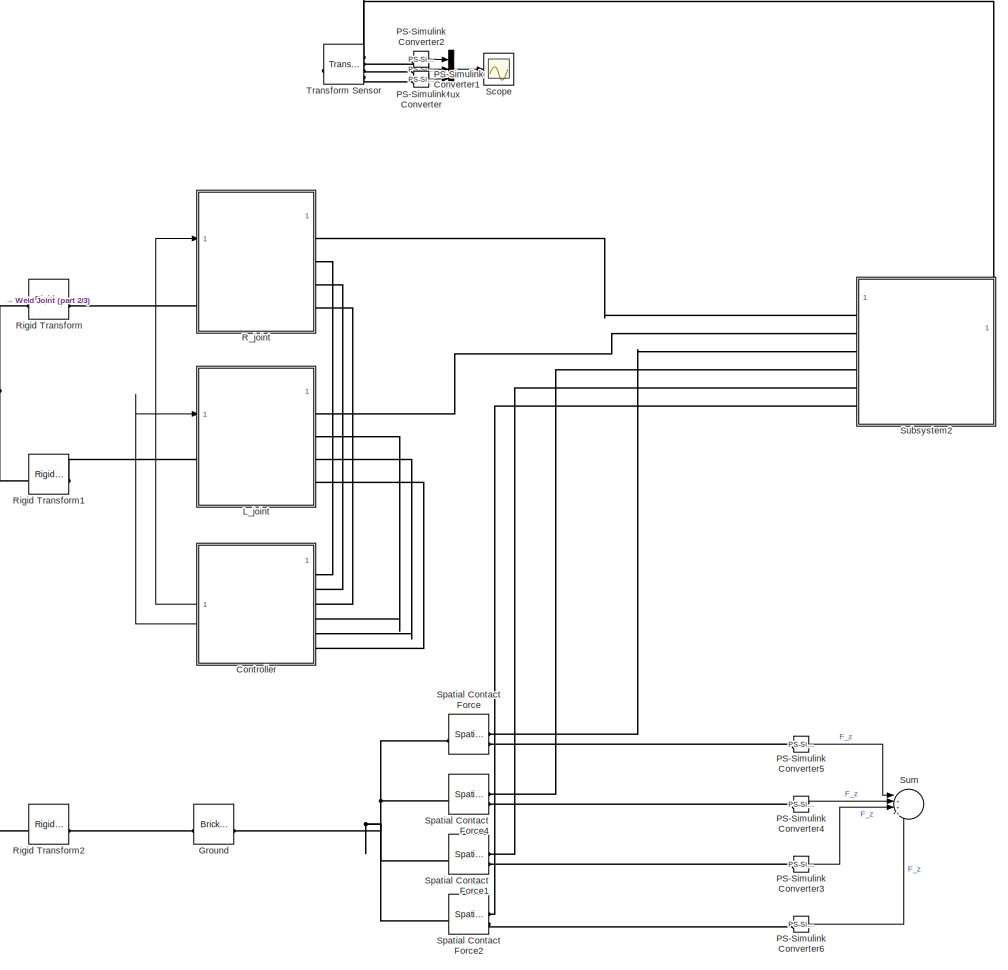
[diagram: root canvas - part 1/3, center side, full height]
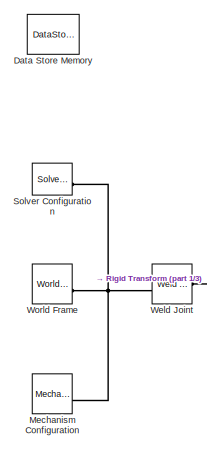
[diagram: root canvas - part 2/3, middle left region]
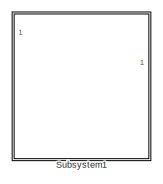
[diagram: root canvas - part 3/3, middle right region]
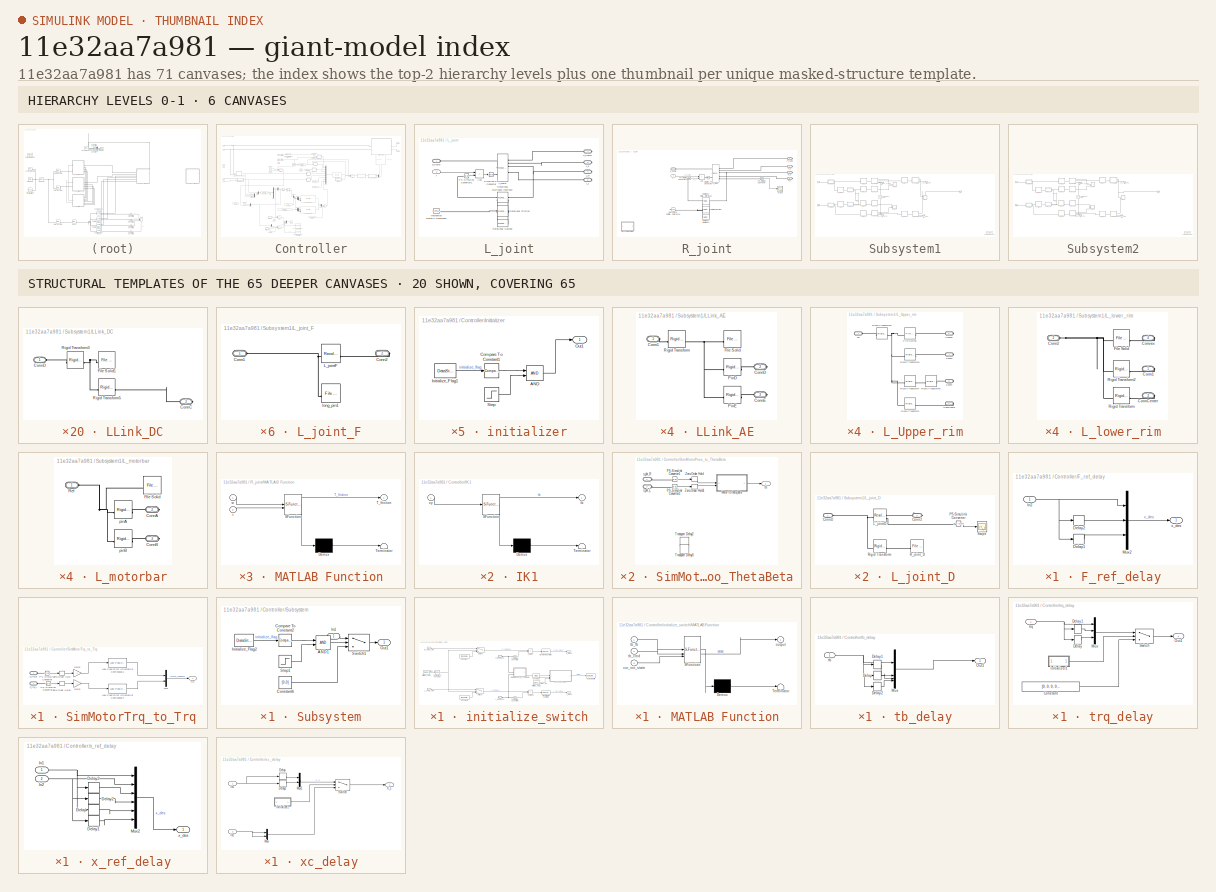
[diagram: thumbnail index - top-2 hierarchy levels (6 canvases) + 20 structural-template representatives of the remaining 65 canvases]
MODEL slx_11e32aa7a981
KIND model
CONFIG AbsTol = 1e-3
CONFIG EnableMultiTasking = on
CONFIG FixedStep = 0.01
CONFIG MaxStep = auto
CONFIG MinStep = auto
CONFIG RelTol = 1e-3
CONFIG SampleTimeConstraint = Unconstrained
CONFIG SolverName = FixedStepAuto
CONFIG StartTime = 0.0
CONFIG StopFcn = Initialize = 0;
CONFIG StopTime = 20
WORKSPACE source: mxarray member
WORKSPACE Initialize: Simulink.Signal (value not decoded)
WORKSPACE Var = [0 0 0]
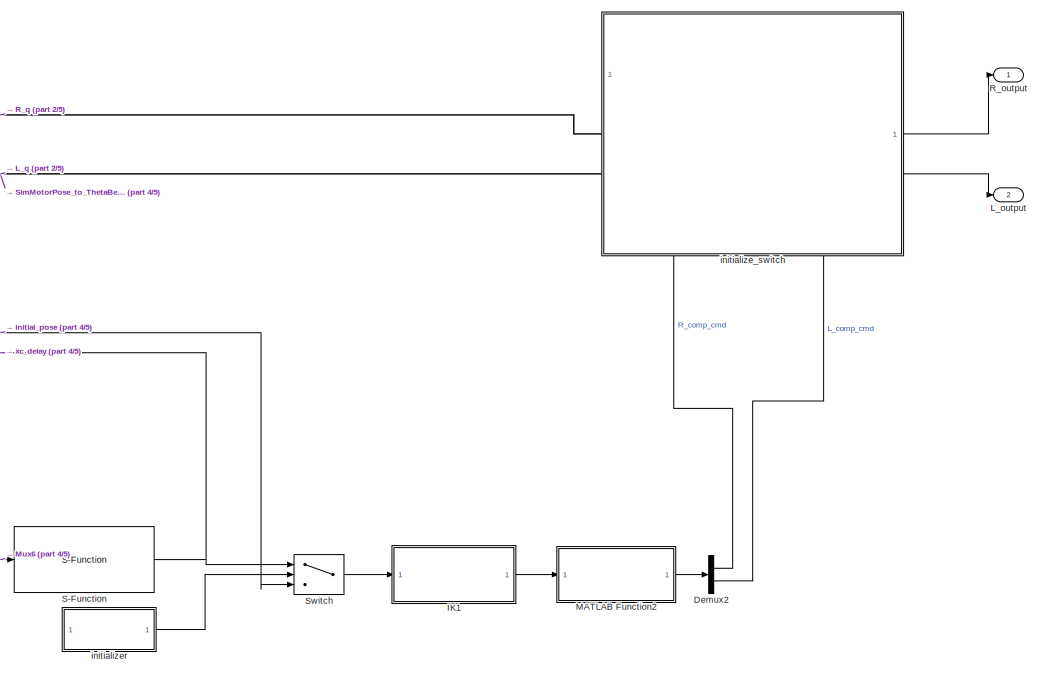
[diagram: Controller - part 1/5, top right region]
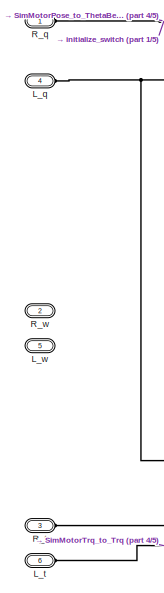
[diagram: Controller - part 2/5, top left region]
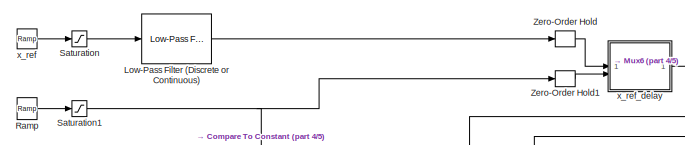
[diagram: Controller - part 3/5, top center region]
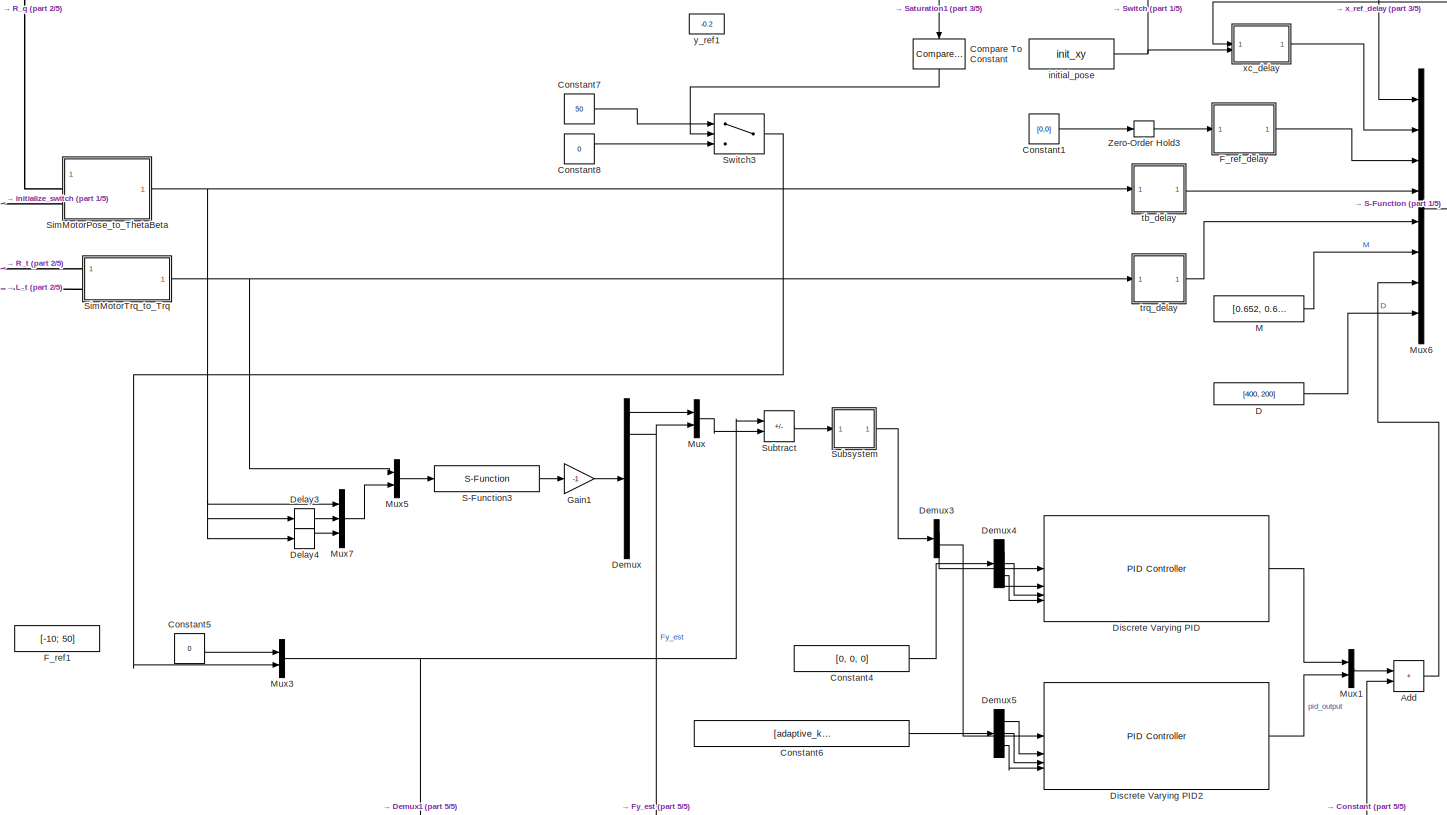
[diagram: Controller - part 4/5, middle left region]
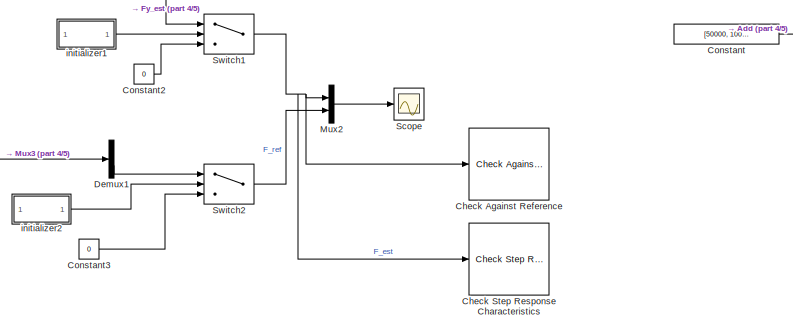
[diagram: Controller - part 5/5, bottom center region]
BLOCK [SubSystem] Controller
BLOCK [Sum] Controller/Add
  IconShape = rectangular
BLOCK [Reference] Controller/Check Against Reference  REF=checkpacklib/Check Against Reference
  InstantiateOnLoad = on
  LibrarySourceBlock = sdolib/Model Verification/Check Against Reference
  SourceBlock = checkpacklib/Check Against Reference
  SourceType = Checks_ReferenceSignal
BLOCK [Reference] Controller/Check Step Response Characteristics  REF=checkpacklib/Check Step Response 
Characteristics
  InstantiateOnLoad = on
  LibrarySourceBlock = sdolib/Model Verification/Check Step Response \nCharacteristics
  SourceBlock = checkpacklib/Check Step Response \nCharacteristics
  SourceType = Checks_StepResponse
BLOCK [Reference] Controller/Compare To Constant  REF=simulink/Logic and Bit
Operations/Compare
To Constant
  NameLocation = left
  SourceBlock = simulink/Logic and Bit\nOperations/Compare\nTo Constant
  SourceType = Compare To Constant
BLOCK [Constant] Controller/Constant
  Value = [50000, 10000]
BLOCK [Constant] Controller/Constant1
  Value = [0,0]
BLOCK [Constant] Controller/Constant2
  Value = 0
BLOCK [Constant] Controller/Constant3
  Value = 0
BLOCK [Constant] Controller/Constant4
  Value = [0, 0, 0]
BLOCK [Constant] Controller/Constant5
  Value = 0
BLOCK [Constant] Controller/Constant6
  Value = [adaptive_kp, adaptive_ki, adaptive_kd]
BLOCK [Constant] Controller/Constant7
  Value = 50
BLOCK [Constant] Controller/Constant8
  Value = 0
BLOCK [Constant] Controller/D
  Value = [400, 200]
BLOCK [Delay] Controller/Delay3
  DelayLength = 1
  InputPortMap = u0
BLOCK [Delay] Controller/Delay4
  InputPortMap = u0
BLOCK [Demux] Controller/Demux
  Outputs = 8
BLOCK [Demux] Controller/Demux1
  Outputs = 2
BLOCK [Demux] Controller/Demux2
  Outputs = 2
BLOCK [Demux] Controller/Demux3
  Outputs = 2
BLOCK [Demux] Controller/Demux4
  Outputs = 3
BLOCK [Demux] Controller/Demux5
  Outputs = 3
BLOCK [Reference] Controller/Discrete Varying PID  REF=slpidlib/PID Controller
  LibrarySourceBlock = cstblocks/Linear Parameter Varying/Discrete Varying PID
  SourceBlock = slpidlib/PID Controller
  SourceType = PID 1dof
BLOCK [Reference] Controller/Discrete Varying PID2  REF=slpidlib/PID Controller
  LibrarySourceBlock = cstblocks/Linear Parameter Varying/Discrete Varying PID
  SourceBlock = slpidlib/PID Controller
  SourceType = PID 1dof
BLOCK [Constant] Controller/F_ref1
  Value = [-10; 50]
BLOCK [SubSystem] Controller/F_ref_delay
BLOCK [Delay] Controller/F_ref_delay/Delay1
  InputPortMap = u0
BLOCK [Delay] Controller/F_ref_delay/Delay2
  DelayLength = 1
  InputPortMap = u0
BLOCK [Inport] Controller/F_ref_delay/In2
BLOCK [Mux] Controller/F_ref_delay/Mux2
  DisplayOption = bar
  Inputs = 3
BLOCK [Outport] Controller/F_ref_delay/x_des
BLOCK [Gain] Controller/Gain1
  Gain = -1
BLOCK [SubSystem] Controller/IK1
  ErrorFcn = Stateflow.Translate.translate
  LibrarySourceBlock = simulink/User-Defined\nFunctions/MATLAB Function
  PermitHierarchicalResolution = ExplicitOnly
  SFBlockType = MATLAB Function
  TreatAsAtomicUnit = on
BLOCK [Demux] Controller/IK1/ Demux 
  Outputs = 1
BLOCK [S-Function] Controller/IK1/ SFunction 
  EnableBusSupport = on
  FunctionName = sf_sfun
  PortCounts = [1 2]
  SFcnIsStateOwnerBlock = off
  SFunctionDeploymentMode = off
  Tag = Stateflow S-Function 3
BLOCK [Terminator] Controller/IK1/ Terminator 
BLOCK [Outport] Controller/IK1/tb
BLOCK [Inport] Controller/IK1/xy
BLOCK [Outport] Controller/L_output
  Port = 2
BLOCK [PMIOPort] Controller/L_q
  Port = 4
  Side = Left
BLOCK [PMIOPort] Controller/L_t
  Port = 6
  Side = Left
BLOCK [PMIOPort] Controller/L_w
  Port = 5
  Side = Left
BLOCK [Reference] Controller/Low-Pass Filter (Discrete or Continuous)  REF=eeGeneralControl/Low-Pass Filter
(Discrete or Continuous)
  LibrarySourceBlock = ee_sl_lib/General Control/Low-Pass Filter\n(Discrete or Continuous)
  SourceBlock = eeGeneralControl/Low-Pass Filter\n(Discrete or Continuous)
  SourceType = Low-Pass Filter (Discrete or Continuous)
BLOCK [Constant] Controller/M
  Value = [0.652, 0.652]
BLOCK [SubSystem] Controller/MATLAB Function2
  ErrorFcn = Stateflow.Translate.translate
  LibrarySourceBlock = simulink/User-Defined\nFunctions/MATLAB Function
  PermitHierarchicalResolution = ExplicitOnly
  SFBlockType = MATLAB Function
  TreatAsAtomicUnit = on
BLOCK [Demux] Controller/MATLAB Function2/ Demux 
  Outputs = 1
BLOCK [S-Function] Controller/MATLAB Function2/ SFunction 
  EnableBusSupport = on
  FunctionName = sf_sfun
  PortCounts = [1 2]
  SFcnIsStateOwnerBlock = off
  SFunctionDeploymentMode = off
  Tag = Stateflow S-Function 5
BLOCK [Terminator] Controller/MATLAB Function2/ Terminator 
BLOCK [Outport] Controller/MATLAB Function2/SimPhiRL
BLOCK [Inport] Controller/MATLAB Function2/ThetaBeta
BLOCK [Mux] Controller/Mux
  DisplayOption = bar
  Inputs = 2
BLOCK [Mux] Controller/Mux1
  DisplayOption = bar
  Inputs = 2
BLOCK [Mux] Controller/Mux2
  DisplayOption = bar
  Inputs = 2
BLOCK [Mux] Controller/Mux3
  DisplayOption = bar
  Inputs = 2
BLOCK [Mux] Controller/Mux5
  DisplayOption = bar
  Inputs = 2
BLOCK [Mux] Controller/Mux6
  DisplayOption = bar
  Inputs = 8
BLOCK [Mux] Controller/Mux7
  DisplayOption = bar
  Inputs = 3
BLOCK [Outport] Controller/R_output
BLOCK [PMIOPort] Controller/R_q
  Side = Left
BLOCK [PMIOPort] Controller/R_t
  Port = 3
  Side = Left
BLOCK [PMIOPort] Controller/R_w
  Port = 2
  Side = Left
BLOCK [Reference] Controller/Ramp  REF=simulink/Sources/Ramp
  SourceBlock = simulink/Sources/Ramp
  SourceType = Ramp
BLOCK [S-Function] Controller/S-Function
  EnableBusSupport = off
  FunctionName = pb_impedance_filter_smex
  SFcnIsStateOwnerBlock = off
  SFunctionDeploymentMode = off
BLOCK [S-Function] Controller/S-Function3
  EnableBusSupport = off
  FunctionName = force_estimate_smex
  SFcnIsStateOwnerBlock = off
  SFunctionDeploymentMode = off
BLOCK [Saturate] Controller/Saturation
  UpperLimit = 0.05
BLOCK [Saturate] Controller/Saturation1
  LowerLimit = -0.2
  UpperLimit = 0
BLOCK [Scope] Controller/Scope
  Floating = off
  NumInputPorts = 1
  ScopeSpecificationString = Simulink.scopes.TimeScopeBlockCfg('CurrentConfiguration', extmgr.ConfigurationSet(extmgr.Configuration('Core','General UI',true),extmgr.Configuration('Core','Source UI',true),extmgr.Configuration('Sources','WiredSimulink',true,'DataLoggingVariableName','ScopeData1'),extmgr.Configuration('Visuals','Time Domain',true,'SerializedDisplays',{struct('MinYLimReal','-29.35546','MaxYLimReal','190.61858','Y...<+1559ch>
BLOCK [SubSystem] Controller/SimMotorPose_to_ThetaBeta
BLOCK [SubSystem] Controller/SimMotorPose_to_ThetaBeta/Motor to theta_beta
  ErrorFcn = Stateflow.Translate.translate
  LibrarySourceBlock = simulink/User-Defined\nFunctions/MATLAB Function
  PermitHierarchicalResolution = ExplicitOnly
  SFBlockType = MATLAB Function
  TreatAsAtomicUnit = on
BLOCK [Demux] Controller/SimMotorPose_to_ThetaBeta/Motor to theta_beta/ Demux 
  Outputs = 1
BLOCK [S-Function] Controller/SimMotorPose_to_ThetaBeta/Motor to theta_beta/ SFunction 
  EnableBusSupport = on
  FunctionName = sf_sfun
  PortCounts = [2 2]
  SFcnIsStateOwnerBlock = off
  SFunctionDeploymentMode = off
  Tag = Stateflow S-Function 1
BLOCK [Terminator] Controller/SimMotorPose_to_ThetaBeta/Motor to theta_beta/ Terminator 
BLOCK [Inport] Controller/SimMotorPose_to_ThetaBeta/Motor to theta_beta/mtrL
  Port = 2
BLOCK [Inport] Controller/SimMotorPose_to_ThetaBeta/Motor to theta_beta/mtrR
BLOCK [Outport] Controller/SimMotorPose_to_ThetaBeta/Motor to theta_beta/tb_vec
BLOCK [Reference] Controller/SimMotorPose_to_ThetaBeta/PS-Simulink Converter1  REF=nesl_utility/PS-Simulink
Converter
  SourceBlock = nesl_utility/PS-Simulink\nConverter
  SourceType = PS-Simulink\nConverter
BLOCK [Reference] Controller/SimMotorPose_to_ThetaBeta/PS-Simulink Converter2  REF=nesl_utility/PS-Simulink
Converter
  SourceBlock = nesl_utility/PS-Simulink\nConverter
  SourceType = PS-Simulink\nConverter
BLOCK [TransportDelay] Controller/SimMotorPose_to_ThetaBeta/Transport Delay2
  Commented = on
  InitialOutput = -0.341
BLOCK [TransportDelay] Controller/SimMotorPose_to_ThetaBeta/Transport Delay3
  Commented = on
  InitialOutput = 2.51
BLOCK [ZeroOrderHold] Controller/SimMotorPose_to_ThetaBeta/Zero-Order Hold
  SampleTime = -1
BLOCK [ZeroOrderHold] Controller/SimMotorPose_to_ThetaBeta/Zero-Order Hold1
  SampleTime = -1
BLOCK [PMIOPort] Controller/SimMotorPose_to_ThetaBeta/s_phi_L
  Port = 2
  Side = Left
BLOCK [PMIOPort] Controller/SimMotorPose_to_ThetaBeta/s_phi_R
  Side = Left
BLOCK [Outport] Controller/SimMotorPose_to_ThetaBeta/tb
BLOCK [SubSystem] Controller/SimMotorTrq_to_Trq
BLOCK [Gain] Controller/SimMotorTrq_to_Trq/Gain2
  Gain = -1
BLOCK [Gain] Controller/SimMotorTrq_to_Trq/Gain3
  Gain = -1
BLOCK [Reference] Controller/SimMotorTrq_to_Trq/Low-Pass Filter (Discrete or Continuous)1  REF=eeGeneralControl/Low-Pass Filter
(Discrete or Continuous)
  LibrarySourceBlock = ee_sl_lib/General Control/Low-Pass Filter\n(Discrete or Continuous)
  SourceBlock = eeGeneralControl/Low-Pass Filter\n(Discrete or Continuous)
  SourceType = Low-Pass Filter (Discrete or Continuous)
BLOCK [Reference] Controller/SimMotorTrq_to_Trq/Low-Pass Filter (Discrete or Continuous)4  REF=eeGeneralControl/Low-Pass Filter
(Discrete or Continuous)
  LibrarySourceBlock = ee_sl_lib/General Control/Low-Pass Filter\n(Discrete or Continuous)
  SourceBlock = eeGeneralControl/Low-Pass Filter\n(Discrete or Continuous)
  SourceType = Low-Pass Filter (Discrete or Continuous)
BLOCK [Mux] Controller/SimMotorTrq_to_Trq/Mux
  DisplayOption = bar
  Inputs = 2
BLOCK [Reference] Controller/SimMotorTrq_to_Trq/PS-Simulink Converter  REF=nesl_utility/PS-Simulink
Converter
  SourceBlock = nesl_utility/PS-Simulink\nConverter
  SourceType = PS-Simulink\nConverter
BLOCK [Reference] Controller/SimMotorTrq_to_Trq/PS-Simulink Converter1  REF=nesl_utility/PS-Simulink
Converter
  SourceBlock = nesl_utility/PS-Simulink\nConverter
  SourceType = PS-Simulink\nConverter
BLOCK [ZeroOrderHold] Controller/SimMotorTrq_to_Trq/Zero-Order Hold
  SampleTime = -1
BLOCK [ZeroOrderHold] Controller/SimMotorTrq_to_Trq/Zero-Order Hold1
  SampleTime = -1
BLOCK [PMIOPort] Controller/SimMotorTrq_to_Trq/s_trq_L
  Port = 2
  Side = Left
BLOCK [PMIOPort] Controller/SimMotorTrq_to_Trq/s_trq_R
  Side = Left
BLOCK [Outport] Controller/SimMotorTrq_to_Trq/trq
BLOCK [SubSystem] Controller/Subsystem
BLOCK [Logic] Controller/Subsystem/AND1
  AllPortsSameDT = off
  IconShape = distinctive
  OutDataTypeStr = boolean
BLOCK [Reference] Controller/Subsystem/Compare To Constant2  REF=simulink/Logic and Bit
Operations/Compare
To Constant
  SourceBlock = simulink/Logic and Bit\nOperations/Compare\nTo Constant
  SourceType = Compare To Constant
BLOCK [Constant] Controller/Subsystem/Constant6
  Value = [0,0]
BLOCK [Inport] Controller/Subsystem/In1
BLOCK [DataStoreRead] Controller/Subsystem/Initialize_Flag2
  DataStoreName = Initialize
  IndexOptions = Index vector (dialog)
  Indices = 1
  OutputSizes = 1
BLOCK [Outport] Controller/Subsystem/Out1
BLOCK [Step] Controller/Subsystem/Step1
  SampleTime = 0
  Time = 0.35
BLOCK [Switch] Controller/Subsystem/Switch1
  Criteria = u2 > Threshold
  InputSameDT = off
  SaturateOnIntegerOverflow = off
BLOCK [Sum] Controller/Subtract
  IconShape = rectangular
  Inputs = +-
BLOCK [Switch] Controller/Switch
  Criteria = u2 > Threshold
  InputSameDT = off
  SaturateOnIntegerOverflow = off
BLOCK [Switch] Controller/Switch1
  Criteria = u2 > Threshold
  InputSameDT = off
  SaturateOnIntegerOverflow = off
BLOCK [Switch] Controller/Switch2
  Criteria = u2 > Threshold
  InputSameDT = off
  SaturateOnIntegerOverflow = off
BLOCK [Switch] Controller/Switch3
  Criteria = u2 ~= 0
  InputSameDT = off
  SaturateOnIntegerOverflow = off
BLOCK [ZeroOrderHold] Controller/Zero-Order Hold
  SampleTime = -1
BLOCK [ZeroOrderHold] Controller/Zero-Order Hold1
  SampleTime = -1
BLOCK [ZeroOrderHold] Controller/Zero-Order Hold3
  SampleTime = -1
BLOCK [Constant] Controller/initial_pose
  Value = init_xy
BLOCK [SubSystem] Controller/initialize_switch
  PortSchema = {"entries":[{"content":{"sides":[{"content":{"connectorIds":["LConn1","LConn2"]},"type":"ConnectorPlacement.EquallySpacedRectSide","uuid":"90e40c7c-5865-4836-be41-da90a1037084"},{"content":{"connectorIds":["Out1","Out2"],"side":"RIGHT"},"type":"ConnectorPlacement.EquallySpacedRectSide","uuid":"b839b53b-6c19-45bc-b89b-7b093b626138"},{"content":{"connectorIds":[],"side":"TOP"},"type":"ConnectorPlace...<+414ch>
BLOCK [Reference] Controller/initialize_switch/Compare To Constant  REF=simulink/Logic and Bit
Operations/Compare
To Constant
  SourceBlock = simulink/Logic and Bit\nOperations/Compare\nTo Constant
  SourceType = Compare To Constant
BLOCK [Constant] Controller/initialize_switch/Constant
  Value = init_sphi(1)
BLOCK [Constant] Controller/initialize_switch/Constant1
  Value = init_sphi(2)
BLOCK [Constant] Controller/initialize_switch/Constant2
  Value = init_tb
BLOCK [DataStoreWrite] Controller/initialize_switch/Data Store Write
  DataStoreName = Initialize
  IndexOptions = Index vector (dialog)
  Indices = 1
  OutputSizes = 1
BLOCK [Reference] Controller/initialize_switch/Discrete PID Controller  REF=slpidlib/PID Controller
  LibrarySourceBlock = simulink/Discrete/Discrete PID Controller
  SourceBlock = slpidlib/PID Controller
  SourceType = PID 1dof
BLOCK [Reference] Controller/initialize_switch/Discrete PID Controller1  REF=slpidlib/PID Controller
  LibrarySourceBlock = simulink/Discrete/Discrete PID Controller
  SourceBlock = slpidlib/PID Controller
  SourceType = PID 1dof
BLOCK [DataStoreRead] Controller/initialize_switch/Initialize_Flag1
  DataStoreName = Initialize
  IndexOptions = Index vector (dialog)
  Indices = 1
  OutputSizes = 1
BLOCK [DataStoreRead] Controller/initialize_switch/Initialize_Flag2
  DataStoreName = Initialize
  IndexOptions = Index vector (dialog)
  Indices = 1
  OutputSizes = 1
BLOCK [Inport] Controller/initialize_switch/L_comp_cmd
  Port = 2
BLOCK [PMIOPort] Controller/initialize_switch/L_feedback
  Port = 2
  Side = Left
BLOCK [Outport] Controller/initialize_switch/L_torque
  NameLocation = right
  Port = 2
BLOCK [SubSystem] Controller/initialize_switch/MATLAB Function
  ErrorFcn = Stateflow.Translate.translate
  LibrarySourceBlock = simulink/User-Defined\nFunctions/MATLAB Function
  PermitHierarchicalResolution = ExplicitOnly
  SFBlockType = MATLAB Function
  TreatAsAtomicUnit = on
BLOCK [Demux] Controller/initialize_switch/MATLAB Function/ Demux 
  Outputs = 1
BLOCK [S-Function] Controller/initialize_switch/MATLAB Function/ SFunction 
  EnableBusSupport = on
  FunctionName = sf_sfun
  PortCounts = [3 2]
  SFcnIsStateOwnerBlock = off
  SFunctionDeploymentMode = off
  Tag = Stateflow S-Function 8
BLOCK [Terminator] Controller/initialize_switch/MATLAB Function/ Terminator 
BLOCK [Inport] Controller/initialize_switch/MATLAB Function/cur_init_state
  Port = 3
BLOCK [Outport] Controller/initialize_switch/MATLAB Function/output
BLOCK [Inport] Controller/initialize_switch/MATLAB Function/tb_cmd
  Port = 2
BLOCK [Inport] Controller/initialize_switch/MATLAB Function/tb_fb
BLOCK [Reference] Controller/initialize_switch/PS-Simulink Converter1  REF=nesl_utility/PS-Simulink
Converter
  SourceBlock = nesl_utility/PS-Simulink\nConverter
  SourceType = PS-Simulink\nConverter
BLOCK [Reference] Controller/initialize_switch/PS-Simulink Converter2  REF=nesl_utility/PS-Simulink
Converter
  SourceBlock = nesl_utility/PS-Simulink\nConverter
  SourceType = PS-Simulink\nConverter
BLOCK [Inport] Controller/initialize_switch/R_comp_cmd
BLOCK [PMIOPort] Controller/initialize_switch/R_feedback
  Side = Left
BLOCK [Outport] Controller/initialize_switch/R_torque
  NameLocation = right
BLOCK [SubSystem] Controller/initialize_switch/SimMotorPose_to_ThetaBeta
BLOCK [SubSystem] Controller/initialize_switch/SimMotorPose_to_ThetaBeta/Motor to theta_beta
  ErrorFcn = Stateflow.Translate.translate
  LibrarySourceBlock = simulink/User-Defined\nFunctions/MATLAB Function
  PermitHierarchicalResolution = ExplicitOnly
  SFBlockType = MATLAB Function
  TreatAsAtomicUnit = on
BLOCK [Demux] Controller/initialize_switch/SimMotorPose_to_ThetaBeta/Motor to theta_beta/ Demux 
  Outputs = 1
BLOCK [S-Function] Controller/initialize_switch/SimMotorPose_to_ThetaBeta/Motor to theta_beta/ SFunction 
  EnableBusSupport = on
  FunctionName = sf_sfun
  PortCounts = [2 2]
  SFcnIsStateOwnerBlock = off
  SFunctionDeploymentMode = off
  Tag = Stateflow S-Function 2
BLOCK [Terminator] Controller/initialize_switch/SimMotorPose_to_ThetaBeta/Motor to theta_beta/ Terminator 
BLOCK [Inport] Controller/initialize_switch/SimMotorPose_to_ThetaBeta/Motor to theta_beta/mtrL
  Port = 2
BLOCK [Inport] Controller/initialize_switch/SimMotorPose_to_ThetaBeta/Motor to theta_beta/mtrR
BLOCK [Outport] Controller/initialize_switch/SimMotorPose_to_ThetaBeta/Motor to theta_beta/tb_vec
BLOCK [Reference] Controller/initialize_switch/SimMotorPose_to_ThetaBeta/PS-Simulink Converter1  REF=nesl_utility/PS-Simulink
Converter
  SourceBlock = nesl_utility/PS-Simulink\nConverter
  SourceType = PS-Simulink\nConverter
BLOCK [Reference] Controller/initialize_switch/SimMotorPose_to_ThetaBeta/PS-Simulink Converter2  REF=nesl_utility/PS-Simulink
Converter
  SourceBlock = nesl_utility/PS-Simulink\nConverter
  SourceType = PS-Simulink\nConverter
BLOCK [TransportDelay] Controller/initialize_switch/SimMotorPose_to_ThetaBeta/Transport Delay2
  Commented = on
  InitialOutput = -0.341
BLOCK [TransportDelay] Controller/initialize_switch/SimMotorPose_to_ThetaBeta/Transport Delay3
  Commented = on
  InitialOutput = 2.51
BLOCK [ZeroOrderHold] Controller/initialize_switch/SimMotorPose_to_ThetaBeta/Zero-Order Hold
  SampleTime = -1
BLOCK [ZeroOrderHold] Controller/initialize_switch/SimMotorPose_to_ThetaBeta/Zero-Order Hold1
  SampleTime = -1
BLOCK [PMIOPort] Controller/initialize_switch/SimMotorPose_to_ThetaBeta/s_phi_L
  Port = 2
  Side = Left
BLOCK [PMIOPort] Controller/initialize_switch/SimMotorPose_to_ThetaBeta/s_phi_R
  Side = Left
BLOCK [Outport] Controller/initialize_switch/SimMotorPose_to_ThetaBeta/tb
BLOCK [Sum] Controller/initialize_switch/Subtract
  IconShape = rectangular
  Inputs = +-
BLOCK [Sum] Controller/initialize_switch/Subtract1
  IconShape = rectangular
  Inputs = +-
BLOCK [Switch] Controller/initialize_switch/Switch2
  Criteria = u2 ~= 0
  InputSameDT = off
  SaturateOnIntegerOverflow = off
  Threshold = 0.5
BLOCK [Switch] Controller/initialize_switch/Switch3
  Criteria = u2 ~= 0
  InputSameDT = off
  SaturateOnIntegerOverflow = off
  Threshold = 0.5
BLOCK [SubSystem] Controller/initializer
BLOCK [Logic] Controller/initializer/AND
  AllPortsSameDT = off
  IconShape = distinctive
  OutDataTypeStr = boolean
BLOCK [Reference] Controller/initializer/Compare To Constant1  REF=simulink/Logic and Bit
Operations/Compare
To Constant
  SourceBlock = simulink/Logic and Bit\nOperations/Compare\nTo Constant
  SourceType = Compare To Constant
BLOCK [DataStoreRead] Controller/initializer/Initialize_Flag1
  DataStoreName = Initialize
  IndexOptions = Index vector (dialog)
  Indices = 1
  OutputSizes = 1
BLOCK [Outport] Controller/initializer/Out1
BLOCK [Step] Controller/initializer/Step
  SampleTime = 0
  Time = start_time
BLOCK [SubSystem] Controller/initializer1
BLOCK [Logic] Controller/initializer1/AND
  AllPortsSameDT = off
  IconShape = distinctive
  OutDataTypeStr = boolean
BLOCK [Reference] Controller/initializer1/Compare To Constant1  REF=simulink/Logic and Bit
Operations/Compare
To Constant
  SourceBlock = simulink/Logic and Bit\nOperations/Compare\nTo Constant
  SourceType = Compare To Constant
BLOCK [DataStoreRead] Controller/initializer1/Initialize_Flag1
  DataStoreName = Initialize
  IndexOptions = Index vector (dialog)
  Indices = 1
  OutputSizes = 1
BLOCK [Outport] Controller/initializer1/Out1
BLOCK [Step] Controller/initializer1/Step
  SampleTime = 0
  Time = start_time
BLOCK [SubSystem] Controller/initializer2
BLOCK [Logic] Controller/initializer2/AND
  AllPortsSameDT = off
  IconShape = distinctive
  OutDataTypeStr = boolean
BLOCK [Reference] Controller/initializer2/Compare To Constant1  REF=simulink/Logic and Bit
Operations/Compare
To Constant
  SourceBlock = simulink/Logic and Bit\nOperations/Compare\nTo Constant
  SourceType = Compare To Constant
BLOCK [DataStoreRead] Controller/initializer2/Initialize_Flag1
  DataStoreName = Initialize
  IndexOptions = Index vector (dialog)
  Indices = 1
  OutputSizes = 1
BLOCK [Outport] Controller/initializer2/Out1
BLOCK [Step] Controller/initializer2/Step
  SampleTime = 0
  Time = start_time
BLOCK [SubSystem] Controller/tb_delay
BLOCK [Delay] Controller/tb_delay/Delay
  InputPortMap = u0
BLOCK [Delay] Controller/tb_delay/Delay1
  DelayLength = 1
  InputPortMap = u0
BLOCK [Delay] Controller/tb_delay/Delay2
  DelayLength = 3
  InputPortMap = u0
BLOCK [Mux] Controller/tb_delay/Mux
  DisplayOption = bar
BLOCK [Outport] Controller/tb_delay/Out1
BLOCK [Inport] Controller/tb_delay/tb
BLOCK [SubSystem] Controller/trq_delay
BLOCK [Constant] Controller/trq_delay/Constant
  Value = [0, 0, 0, 0, 0, 0]
BLOCK [Delay] Controller/trq_delay/Delay
  InputPortMap = u0
BLOCK [Delay] Controller/trq_delay/Delay1
  DelayLength = 1
  InputPortMap = u0
BLOCK [Mux] Controller/trq_delay/Mux
  DisplayOption = bar
  Inputs = 3
BLOCK [Outport] Controller/trq_delay/Out1
BLOCK [Switch] Controller/trq_delay/Switch
  Criteria = u2 > Threshold
  InputSameDT = off
  SaturateOnIntegerOverflow = off
BLOCK [SubSystem] Controller/trq_delay/initializer1
BLOCK [Logic] Controller/trq_delay/initializer1/AND
  AllPortsSameDT = off
  IconShape = distinctive
  OutDataTypeStr = boolean
BLOCK [Reference] Controller/trq_delay/initializer1/Compare To Constant1  REF=simulink/Logic and Bit
Operations/Compare
To Constant
  SourceBlock = simulink/Logic and Bit\nOperations/Compare\nTo Constant
  SourceType = Compare To Constant
BLOCK [DataStoreRead] Controller/trq_delay/initializer1/Initialize_Flag1
  DataStoreName = Initialize
  IndexOptions = Index vector (dialog)
  Indices = 1
  OutputSizes = 1
BLOCK [Outport] Controller/trq_delay/initializer1/Out1
BLOCK [Step] Controller/trq_delay/initializer1/Step
  SampleTime = 0
  Time = start_time
BLOCK [Inport] Controller/trq_delay/trq
BLOCK [Reference] Controller/x_ref  REF=simulink/Sources/Ramp
  SourceBlock = simulink/Sources/Ramp
  SourceType = Ramp
BLOCK [SubSystem] Controller/x_ref_delay
BLOCK [Delay] Controller/x_ref_delay/Delay
  InputPortMap = u0
BLOCK [Delay] Controller/x_ref_delay/Delay1
  InputPortMap = u0
BLOCK [Delay] Controller/x_ref_delay/Delay2
  DelayLength = 1
  InputPortMap = u0
BLOCK [Delay] Controller/x_ref_delay/Delay3
  DelayLength = 1
  InputPortMap = u0
BLOCK [Inport] Controller/x_ref_delay/In1
BLOCK [Inport] Controller/x_ref_delay/In2
  Port = 2
BLOCK [Mux] Controller/x_ref_delay/Mux2
  DisplayOption = bar
  Inputs = 6
BLOCK [Outport] Controller/x_ref_delay/x_des
BLOCK [SubSystem] Controller/xc_delay
BLOCK [Delay] Controller/xc_delay/Delay
  DelayLength = 1
  InputPortMap = u0
BLOCK [Delay] Controller/xc_delay/Delay1
  InputPortMap = u0
BLOCK [Inport] Controller/xc_delay/In1
BLOCK [Inport] Controller/xc_delay/In2
  Port = 2
BLOCK [Mux] Controller/xc_delay/Mux
  DisplayOption = bar
  Inputs = 2
BLOCK [Mux] Controller/xc_delay/Mux1
  DisplayOption = bar
  Inputs = 2
BLOCK [Switch] Controller/xc_delay/Switch
  Criteria = u2 > Threshold
  InputSameDT = off
  SaturateOnIntegerOverflow = off
BLOCK [Outport] Controller/xc_delay/X_c
BLOCK [SubSystem] Controller/xc_delay/initializer1
BLOCK [Logic] Controller/xc_delay/initializer1/AND
  AllPortsSameDT = off
  IconShape = distinctive
  OutDataTypeStr = boolean
BLOCK [Reference] Controller/xc_delay/initializer1/Compare To Constant1  REF=simulink/Logic and Bit
Operations/Compare
To Constant
  SourceBlock = simulink/Logic and Bit\nOperations/Compare\nTo Constant
  SourceType = Compare To Constant
BLOCK [DataStoreRead] Controller/xc_delay/initializer1/Initialize_Flag1
  DataStoreName = Initialize
  IndexOptions = Index vector (dialog)
  Indices = 1
  OutputSizes = 1
BLOCK [Outport] Controller/xc_delay/initializer1/Out1
BLOCK [Step] Controller/xc_delay/initializer1/Step
  SampleTime = 0
  Time = start_time
BLOCK [Constant] Controller/y_ref1
  Value = -0.2
BLOCK [DataStoreMemory] Data Store Memory
  DataStoreName = Initialize
  ShowAdditionalParam = off
  StateMustResolveToSignalObject = on
  WriteAfterWriteMsg = warning
BLOCK [Reference] Ground  REF=sm_lib/Body Elements/Brick Solid
  SourceBlock = sm_lib/Body Elements/Brick Solid
  SourceType = Brick Solid
BLOCK [SubSystem] L_joint
BLOCK [Sum] L_joint/Add
  IconShape = rectangular
BLOCK [PMIOPort] L_joint/F_frame
  Port = 2
  Side = Right
BLOCK [Reference] L_joint/L_Motor  REF=sm_lib/Joints/Revolute Joint
  SourceBlock = sm_lib/Joints/Revolute Joint
  SourceType = Revolute Joint
BLOCK [PMIOPort] L_joint/L_q
  Port = 3
  Side = Right
BLOCK [PMIOPort] L_joint/L_t
  Port = 5
  Side = Right
BLOCK [PMIOPort] L_joint/L_w
  Port = 4
  Side = Right
BLOCK [Reference] L_joint/Mechanical Rotational Reference  REF=fl_lib/Mechanical/Rotational Elements/Mechanical
Rotational Reference
  NameLocation = top
  SourceBlock = fl_lib/Mechanical/Rotational Elements/Mechanical\nRotational Reference
  SourceType = Mechanical\nRotational Reference
BLOCK [Reference] L_joint/PS-Simulink Converter1  REF=nesl_utility/PS-Simulink
Converter
  SourceBlock = nesl_utility/PS-Simulink\nConverter
  SourceType = PS-Simulink\nConverter
BLOCK [Reference] L_joint/Rotational Damper  REF=fl_lib/Mechanical/Rotational Elements/Rotational Damper
  NameLocation = top
  SourceBlock = fl_lib/Mechanical/Rotational Elements/Rotational Damper
  SourceType = Rotational Damper
BLOCK [Reference] L_joint/Rotational Friction  REF=fl_lib/Mechanical/Rotational Elements/Rotational Friction
  NameLocation = top
  SourceBlock = fl_lib/Mechanical/Rotational Elements/Rotational Friction
  SourceType = Rotational Friction
BLOCK [Reference] L_joint/Rotational Multibody Interface  REF=fl_lib/Mechanical/Multibody Interfaces/Rotational Multibody
Interface
  SourceBlock = fl_lib/Mechanical/Multibody Interfaces/Rotational Multibody\nInterface
  SourceType = Rotational Multibody\nInterface
BLOCK [Reference] L_joint/Simulink-PS Converter  REF=nesl_utility/Simulink-PS
Converter
  SourceBlock = nesl_utility/Simulink-PS\nConverter
  SourceType = Simulink-PS\nConverter
BLOCK [PMIOPort] L_joint/b_frame
  Side = Left
BLOCK [Inport] L_joint/t
BLOCK [Reference] Mechanism Configuration  REF=sm_lib/Utilities/Mechanism
Configuration
  SourceBlock = sm_lib/Utilities/Mechanism\nConfiguration
  SourceType = Mechanism\nConfiguration
BLOCK [Mux] Mux
  DisplayOption = bar
  Inputs = 3
BLOCK [Reference] PS-Simulink Converter  REF=nesl_utility/PS-Simulink
Converter
  SourceBlock = nesl_utility/PS-Simulink\nConverter
  SourceType = PS-Simulink\nConverter
BLOCK [Reference] PS-Simulink Converter1  REF=nesl_utility/PS-Simulink
Converter
  SourceBlock = nesl_utility/PS-Simulink\nConverter
  SourceType = PS-Simulink\nConverter
BLOCK [Reference] PS-Simulink Converter2  REF=nesl_utility/PS-Simulink
Converter
  SourceBlock = nesl_utility/PS-Simulink\nConverter
  SourceType = PS-Simulink\nConverter
BLOCK [Reference] PS-Simulink Converter3  REF=nesl_utility/PS-Simulink
Converter
  SourceBlock = nesl_utility/PS-Simulink\nConverter
  SourceType = PS-Simulink\nConverter
BLOCK [Reference] PS-Simulink Converter4  REF=nesl_utility/PS-Simulink
Converter
  Commented = on
  SourceBlock = nesl_utility/PS-Simulink\nConverter
  SourceType = PS-Simulink\nConverter
BLOCK [Reference] PS-Simulink Converter5  REF=nesl_utility/PS-Simulink
Converter
  Commented = on
  SourceBlock = nesl_utility/PS-Simulink\nConverter
  SourceType = PS-Simulink\nConverter
BLOCK [Reference] PS-Simulink Converter6  REF=nesl_utility/PS-Simulink
Converter
  SourceBlock = nesl_utility/PS-Simulink\nConverter
  SourceType = PS-Simulink\nConverter
BLOCK [SubSystem] R_joint
BLOCK [Sum] R_joint/Add
  IconShape = rectangular
BLOCK [PMIOPort] R_joint/F_frame
  Side = Right
BLOCK [SubSystem] R_joint/MATLAB Function
  Commented = on
  ErrorFcn = Stateflow.Translate.translate
  LibrarySourceBlock = simulink/User-Defined\nFunctions/MATLAB Function
  NameLocation = top
  PermitHierarchicalResolution = ExplicitOnly
  SFBlockType = MATLAB Function
  TreatAsAtomicUnit = on
BLOCK [Demux] R_joint/MATLAB Function/ Demux 
  Outputs = 1
BLOCK [S-Function] R_joint/MATLAB Function/ SFunction 
  EnableBusSupport = on
  FunctionName = sf_sfun
  PortCounts = [2 2]
  SFcnIsStateOwnerBlock = off
  SFunctionDeploymentMode = off
  Tag = Stateflow S-Function 4
BLOCK [Terminator] R_joint/MATLAB Function/ Terminator 
BLOCK [Outport] R_joint/MATLAB Function/T_friction
BLOCK [Inport] R_joint/MATLAB Function/t
  Port = 2
BLOCK [Inport] R_joint/MATLAB Function/w
BLOCK [Reference] R_joint/Mechanical Rotational Reference  REF=fl_lib/Mechanical/Rotational Elements/Mechanical
Rotational Reference
  NameLocation = top
  SourceBlock = fl_lib/Mechanical/Rotational Elements/Mechanical\nRotational Reference
  SourceType = Mechanical\nRotational Reference
BLOCK [Reference] R_joint/PS-Simulink Converter  REF=nesl_utility/PS-Simulink
Converter
  SourceBlock = nesl_utility/PS-Simulink\nConverter
  SourceType = PS-Simulink\nConverter
BLOCK [Reference] R_joint/PS-Simulink Converter1  REF=nesl_utility/PS-Simulink
Converter
  SourceBlock = nesl_utility/PS-Simulink\nConverter
  SourceType = PS-Simulink\nConverter
BLOCK [Reference] R_joint/R_Motor  REF=sm_lib/Joints/Revolute Joint
  SourceBlock = sm_lib/Joints/Revolute Joint
  SourceType = Revolute Joint
BLOCK [PMIOPort] R_joint/R_q
  Port = 3
  Side = Right
BLOCK [PMIOPort] R_joint/R_t
  Port = 5
  Side = Right
BLOCK [PMIOPort] R_joint/R_w
  Port = 4
  Side = Right
BLOCK [Reference] R_joint/Rotational Damper1  REF=fl_lib/Mechanical/Rotational Elements/Rotational Damper
  NameLocation = top
  SourceBlock = fl_lib/Mechanical/Rotational Elements/Rotational Damper
  SourceType = Rotational Damper
BLOCK [Reference] R_joint/Rotational Friction  REF=fl_lib/Mechanical/Rotational Elements/Rotational Friction
  NameLocation = top
  SourceBlock = fl_lib/Mechanical/Rotational Elements/Rotational Friction
  SourceType = Rotational Friction
BLOCK [Reference] R_joint/Rotational Multibody Interface1  REF=fl_lib/Mechanical/Multibody Interfaces/Rotational Multibody
Interface
  SourceBlock = fl_lib/Mechanical/Multibody Interfaces/Rotational Multibody\nInterface
  SourceType = Rotational Multibody\nInterface
BLOCK [Scope] R_joint/Scope
  Floating = off
  NumInputPorts = 1
  ScopeSpecificationString = Simulink.scopes.TimeScopeBlockCfg('CurrentConfiguration', extmgr.ConfigurationSet(extmgr.Configuration('Core','General UI',true),extmgr.Configuration('Core','Source UI',true),extmgr.Configuration('Sources','WiredSimulink',true),extmgr.Configuration('Visuals','Time Domain',true,'SerializedDisplays',{struct('MinYLimReal','-102.49657','MaxYLimReal','151.41649','YLabelReal','','MinYLimMag',' 0.00000',...<+1491ch>
BLOCK [Reference] R_joint/Simulink-PS Converter  REF=nesl_utility/Simulink-PS
Converter
  SourceBlock = nesl_utility/Simulink-PS\nConverter
  SourceType = Simulink-PS\nConverter
BLOCK [PMIOPort] R_joint/b_frame
  Port = 2
  Side = Left
BLOCK [Inport] R_joint/t
BLOCK [Reference] Rigid Transform  REF=sm_lib/Frames and
Transforms/Rigid
Transform
  SourceBlock = sm_lib/Frames and\nTransforms/Rigid\nTransform
  SourceType = Rigid\nTransform
BLOCK [Reference] Rigid Transform1  REF=sm_lib/Frames and
Transforms/Rigid
Transform
  SourceBlock = sm_lib/Frames and\nTransforms/Rigid\nTransform
  SourceType = Rigid\nTransform
BLOCK [Reference] Rigid Transform2  REF=sm_lib/Frames and
Transforms/Rigid
Transform
  SourceBlock = sm_lib/Frames and\nTransforms/Rigid\nTransform
  SourceType = Rigid\nTransform
BLOCK [Scope] Scope
  Floating = off
  NumInputPorts = 1
  ScopeSpecificationString = Simulink.scopes.TimeScopeBlockCfg('CurrentConfiguration', extmgr.ConfigurationSet(extmgr.Configuration('Core','General UI',true),extmgr.Configuration('Core','Source UI',true),extmgr.Configuration('Sources','WiredSimulink',true,'DataLoggingVariableName','ScopeData1'),extmgr.Configuration('Visuals','Time Domain',true,'SerializedDisplays',{struct('MinYLimReal','-1.34589','MaxYLimReal','2.60472','YLab...<+1503ch>
BLOCK [Reference] Solver Configuration  REF=nesl_utility/Solver
Configuration
  SourceBlock = nesl_utility/Solver\nConfiguration
  SourceType = Solver\nConfiguration
BLOCK [Reference] Spatial Contact Force  REF=sm_lib/Forces and
Torques/Spatial
Contact Force
  Commented = on
  SourceBlock = sm_lib/Forces and\nTorques/Spatial\nContact Force
  SourceType = Spatial\nContact Force
BLOCK [Reference] Spatial Contact Force1  REF=sm_lib/Forces and
Torques/Spatial
Contact Force
  SourceBlock = sm_lib/Forces and\nTorques/Spatial\nContact Force
  SourceType = Spatial\nContact Force
BLOCK [Reference] Spatial Contact Force2  REF=sm_lib/Forces and
Torques/Spatial
Contact Force
  SourceBlock = sm_lib/Forces and\nTorques/Spatial\nContact Force
  SourceType = Spatial\nContact Force
BLOCK [Reference] Spatial Contact Force4  REF=sm_lib/Forces and
Torques/Spatial
Contact Force
  Commented = on
  SourceBlock = sm_lib/Forces and\nTorques/Spatial\nContact Force
  SourceType = Spatial\nContact Force
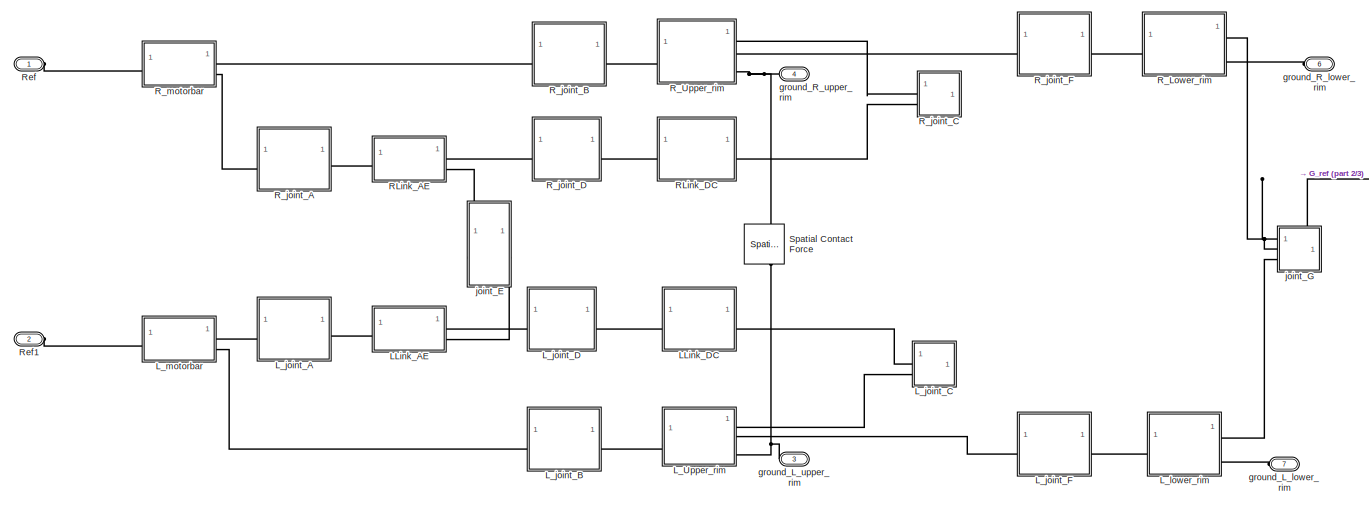
[diagram: Subsystem1 - part 1/3, middle left region]
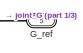
[diagram: Subsystem1 - part 2/3, top right region]
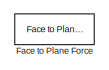
[diagram: Subsystem1 - part 3/3, bottom right region]
BLOCK [SubSystem] Subsystem1
  Commented = on
BLOCK [Reference] Subsystem1/Face to Plane Force  REF=Contact_Forces_Lib/3D/Composite
Forces/Face to Plane Force
  Commented = on
  SourceBlock = Contact_Forces_Lib/3D/Composite\nForces/Face to Plane Force
  SourceType = Face to Plane Force
BLOCK [PMIOPort] Subsystem1/G_ref
  NameLocation = top
  Port = 5
  Side = Right
BLOCK [SubSystem] Subsystem1/LLink_AE
BLOCK [PMIOPort] Subsystem1/LLink_AE/Conn1
  Side = Left
BLOCK [PMIOPort] Subsystem1/LLink_AE/ConnD
  Port = 2
  Side = Right
BLOCK [PMIOPort] Subsystem1/LLink_AE/ConnE
  Port = 3
  Side = Right
BLOCK [Reference] Subsystem1/LLink_AE/File Solid  REF=sm_lib/Body Elements/File Solid
  NameLocation = top
  SourceBlock = sm_lib/Body Elements/File Solid
  SourceType = File Solid
BLOCK [Reference] Subsystem1/LLink_AE/PinD  REF=sm_lib/Frames and
Transforms/Rigid
Transform
  SourceBlock = sm_lib/Frames and\nTransforms/Rigid\nTransform
  SourceType = Rigid\nTransform
BLOCK [Reference] Subsystem1/LLink_AE/PinE  REF=sm_lib/Frames and
Transforms/Rigid
Transform
  SourceBlock = sm_lib/Frames and\nTransforms/Rigid\nTransform
  SourceType = Rigid\nTransform
BLOCK [Reference] Subsystem1/LLink_AE/Rigid Transform  REF=sm_lib/Frames and
Transforms/Rigid
Transform
  SourceBlock = sm_lib/Frames and\nTransforms/Rigid\nTransform
  SourceType = Rigid\nTransform
BLOCK [SubSystem] Subsystem1/LLink_DC
BLOCK [PMIOPort] Subsystem1/LLink_DC/ConnC
  Port = 2
  Side = Right
BLOCK [PMIOPort] Subsystem1/LLink_DC/ConnD
  Side = Left
BLOCK [Reference] Subsystem1/LLink_DC/File Solid1  REF=sm_lib/Body Elements/File Solid
  NameLocation = top
  SourceBlock = sm_lib/Body Elements/File Solid
  SourceType = File Solid
BLOCK [Reference] Subsystem1/LLink_DC/Rigid Transform3  REF=sm_lib/Frames and
Transforms/Rigid
Transform
  SourceBlock = sm_lib/Frames and\nTransforms/Rigid\nTransform
  SourceType = Rigid\nTransform
BLOCK [Reference] Subsystem1/LLink_DC/Rigid Transform5  REF=sm_lib/Frames and
Transforms/Rigid
Transform
  SourceBlock = sm_lib/Frames and\nTransforms/Rigid\nTransform
  SourceType = Rigid\nTransform
BLOCK [SubSystem] Subsystem1/L_Upper_rim
BLOCK [PMIOPort] Subsystem1/L_Upper_rim/ConnC
  Side = Right
BLOCK [PMIOPort] Subsystem1/L_Upper_rim/ConnCenter
  Port = 4
  Side = Right
BLOCK [PMIOPort] Subsystem1/L_Upper_rim/ConnF
  Port = 3
  Side = Right
BLOCK [PMIOPort] Subsystem1/L_Upper_rim/Convex
  Port = 5
  Side = Right
BLOCK [Reference] Subsystem1/L_Upper_rim/File Solid2  REF=sm_lib/Body Elements/File Solid
  NameLocation = top
  SourceBlock = sm_lib/Body Elements/File Solid
  SourceType = File Solid
BLOCK [Reference] Subsystem1/L_Upper_rim/Rigid Transform  REF=sm_lib/Frames and
Transforms/Rigid
Transform
  SourceBlock = sm_lib/Frames and\nTransforms/Rigid\nTransform
  SourceType = Rigid\nTransform
BLOCK [Reference] Subsystem1/L_Upper_rim/Rigid Transform6  REF=sm_lib/Frames and
Transforms/Rigid
Transform
  SourceBlock = sm_lib/Frames and\nTransforms/Rigid\nTransform
  SourceType = Rigid\nTransform
BLOCK [Reference] Subsystem1/L_Upper_rim/Rigid Transform7  REF=sm_lib/Frames and
Transforms/Rigid
Transform
  SourceBlock = sm_lib/Frames and\nTransforms/Rigid\nTransform
  SourceType = Rigid\nTransform
BLOCK [Reference] Subsystem1/L_Upper_rim/Rigid Transform8  REF=sm_lib/Frames and
Transforms/Rigid
Transform
  SourceBlock = sm_lib/Frames and\nTransforms/Rigid\nTransform
  SourceType = Rigid\nTransform
BLOCK [Reference] Subsystem1/L_Upper_rim/Rigid Transform9  REF=sm_lib/Frames and
Transforms/Rigid
Transform
  SourceBlock = sm_lib/Frames and\nTransforms/Rigid\nTransform
  SourceType = Rigid\nTransform
BLOCK [PMIOPort] Subsystem1/L_Upper_rim/ref
  Port = 2
  Side = Left
BLOCK [SubSystem] Subsystem1/L_joint_A
BLOCK [PMIOPort] Subsystem1/L_joint_A/Conn1
  Side = Left
BLOCK [PMIOPort] Subsystem1/L_joint_A/Conn2
  Port = 2
  Side = Right
BLOCK [Reference] Subsystem1/L_joint_A/L_ShortPinA  REF=sm_lib/Body Elements/File Solid
  NameLocation = top
  SourceBlock = sm_lib/Body Elements/File Solid
  SourceType = File Solid
BLOCK [Reference] Subsystem1/L_joint_A/L_jointA  REF=sm_lib/Joints/Revolute Joint
  SourceBlock = sm_lib/Joints/Revolute Joint
  SourceType = Revolute Joint
BLOCK [Reference] Subsystem1/L_joint_A/Rigid Transform  REF=sm_lib/Frames and
Transforms/Rigid
Transform
  SourceBlock = sm_lib/Frames and\nTransforms/Rigid\nTransform
  SourceType = Rigid\nTransform
BLOCK [SubSystem] Subsystem1/L_joint_B
BLOCK [PMIOPort] Subsystem1/L_joint_B/Conn1
  Side = Left
BLOCK [PMIOPort] Subsystem1/L_joint_B/Conn2
  Port = 2
  Side = Right
BLOCK [Reference] Subsystem1/L_joint_B/L_jointB  REF=sm_lib/Joints/Revolute Joint
  SourceBlock = sm_lib/Joints/Revolute Joint
  SourceType = Revolute Joint
BLOCK [Reference] Subsystem1/L_joint_B/Rigid Transform  REF=sm_lib/Frames and
Transforms/Rigid
Transform
  SourceBlock = sm_lib/Frames and\nTransforms/Rigid\nTransform
  SourceType = Rigid\nTransform
BLOCK [Reference] Subsystem1/L_joint_B/long_pin3  REF=sm_lib/Body Elements/File Solid
  NameLocation = top
  SourceBlock = sm_lib/Body Elements/File Solid
  SourceType = File Solid
BLOCK [SubSystem] Subsystem1/L_joint_C
BLOCK [PMIOPort] Subsystem1/L_joint_C/Conn1
  Side = Left
BLOCK [PMIOPort] Subsystem1/L_joint_C/Conn2
  Port = 2
  Side = Left
BLOCK [Reference] Subsystem1/L_joint_C/L_jointC  REF=sm_lib/Joints/Bearing Joint
  NameLocation = right
  SourceBlock = sm_lib/Joints/Bearing Joint
  SourceType = Bearing Joint
BLOCK [Reference] Subsystem1/L_joint_C/Rigid Transform  REF=sm_lib/Frames and
Transforms/Rigid
Transform
  SourceBlock = sm_lib/Frames and\nTransforms/Rigid\nTransform
  SourceType = Rigid\nTransform
BLOCK [Reference] Subsystem1/L_joint_C/long_pin2  REF=sm_lib/Body Elements/File Solid
  NameLocation = top
  SourceBlock = sm_lib/Body Elements/File Solid
  SourceType = File Solid
BLOCK [SubSystem] Subsystem1/L_joint_D
BLOCK [PMIOPort] Subsystem1/L_joint_D/Conn2
  Port = 2
  Side = Right
BLOCK [PMIOPort] Subsystem1/L_joint_D/ConnD
  Side = Left
BLOCK [Reference] Subsystem1/L_joint_D/L_jointD  REF=sm_lib/Joints/Revolute Joint
  SourceBlock = sm_lib/Joints/Revolute Joint
  SourceType = Revolute Joint
BLOCK [Reference] Subsystem1/L_joint_D/PS-Simulink Converter  REF=nesl_utility/PS-Simulink
Converter
  SourceBlock = nesl_utility/PS-Simulink\nConverter
  SourceType = PS-Simulink\nConverter
BLOCK [Reference] Subsystem1/L_joint_D/R_joint_D  REF=sm_lib/Body Elements/File Solid
  NameLocation = top
  SourceBlock = sm_lib/Body Elements/File Solid
  SourceType = File Solid
BLOCK [Reference] Subsystem1/L_joint_D/Rigid Transform  REF=sm_lib/Frames and
Transforms/Rigid
Transform
  SourceBlock = sm_lib/Frames and\nTransforms/Rigid\nTransform
  SourceType = Rigid\nTransform
BLOCK [Scope] Subsystem1/L_joint_D/Scope
  Floating = off
  NumInputPorts = 1
  ScopeSpecificationString = Simulink.scopes.TimeScopeBlockCfg('CurrentConfiguration', extmgr.ConfigurationSet(extmgr.Configuration('Core','General UI',true),extmgr.Configuration('Core','Source UI',true),extmgr.Configuration('Sources','WiredSimulink',true,'DataLoggingVariableName','ScopeData1'),extmgr.Configuration('Visuals','Time Domain',true,'SerializedDisplays',{struct('MinYLimReal','-10.00000','MaxYLimReal','10.00000','YL...<+1724ch>
BLOCK [SubSystem] Subsystem1/L_joint_F
BLOCK [PMIOPort] Subsystem1/L_joint_F/Conn1
  Side = Left
BLOCK [PMIOPort] Subsystem1/L_joint_F/Conn2
  Port = 2
  Side = Right
BLOCK [Reference] Subsystem1/L_joint_F/L_jointF  REF=sm_lib/Joints/Revolute Joint
  SourceBlock = sm_lib/Joints/Revolute Joint
  SourceType = Revolute Joint
BLOCK [Reference] Subsystem1/L_joint_F/long_pin1  REF=sm_lib/Body Elements/File Solid
  NameLocation = top
  SourceBlock = sm_lib/Body Elements/File Solid
  SourceType = File Solid
BLOCK [SubSystem] Subsystem1/L_lower_rim
BLOCK [PMIOPort] Subsystem1/L_lower_rim/Conn1
  Side = Right
BLOCK [PMIOPort] Subsystem1/L_lower_rim/Conn2
  Port = 2
  Side = Left
BLOCK [PMIOPort] Subsystem1/L_lower_rim/ConnCenter
  Port = 3
  Side = Right
BLOCK [PMIOPort] Subsystem1/L_lower_rim/Convex
  Port = 4
  Side = Right
BLOCK [Reference] Subsystem1/L_lower_rim/File Solid  REF=sm_lib/Body Elements/File Solid
  NameLocation = top
  SourceBlock = sm_lib/Body Elements/File Solid
  SourceType = File Solid
BLOCK [Reference] Subsystem1/L_lower_rim/Rigid Transform  REF=sm_lib/Frames and
Transforms/Rigid
Transform
  SourceBlock = sm_lib/Frames and\nTransforms/Rigid\nTransform
  SourceType = Rigid\nTransform
BLOCK [Reference] Subsystem1/L_lower_rim/Rigid Transform2  REF=sm_lib/Frames and
Transforms/Rigid
Transform
  SourceBlock = sm_lib/Frames and\nTransforms/Rigid\nTransform
  SourceType = Rigid\nTransform
BLOCK [SubSystem] Subsystem1/L_motorbar
BLOCK [PMIOPort] Subsystem1/L_motorbar/ConnA
  Port = 2
  Side = Right
BLOCK [PMIOPort] Subsystem1/L_motorbar/ConnB
  Port = 3
  Side = Right
BLOCK [Reference] Subsystem1/L_motorbar/File Solid  REF=sm_lib/Body Elements/File Solid
  NameLocation = top
  SourceBlock = sm_lib/Body Elements/File Solid
  SourceType = File Solid
BLOCK [PMIOPort] Subsystem1/L_motorbar/Ref
  Side = Left
BLOCK [Reference] Subsystem1/L_motorbar/pinA  REF=sm_lib/Frames and
Transforms/Rigid
Transform
  SourceBlock = sm_lib/Frames and\nTransforms/Rigid\nTransform
  SourceType = Rigid\nTransform
BLOCK [Reference] Subsystem1/L_motorbar/pinB  REF=sm_lib/Frames and
Transforms/Rigid
Transform
  SourceBlock = sm_lib/Frames and\nTransforms/Rigid\nTransform
  SourceType = Rigid\nTransform
BLOCK [SubSystem] Subsystem1/RLink_AE
BLOCK [PMIOPort] Subsystem1/RLink_AE/ConnD
  Port = 2
  Side = Right
BLOCK [PMIOPort] Subsystem1/RLink_AE/ConnE
  Port = 3
  Side = Right
BLOCK [Reference] Subsystem1/RLink_AE/Link_AE_Body  REF=sm_lib/Body Elements/File Solid
  NameLocation = top
  SourceBlock = sm_lib/Body Elements/File Solid
  SourceType = File Solid
BLOCK [Reference] Subsystem1/RLink_AE/PinD  REF=sm_lib/Frames and
Transforms/Rigid
Transform
  SourceBlock = sm_lib/Frames and\nTransforms/Rigid\nTransform
  SourceType = Rigid\nTransform
BLOCK [Reference] Subsystem1/RLink_AE/PinE  REF=sm_lib/Frames and
Transforms/Rigid
Transform
  SourceBlock = sm_lib/Frames and\nTransforms/Rigid\nTransform
  SourceType = Rigid\nTransform
BLOCK [PMIOPort] Subsystem1/RLink_AE/Ref
  Side = Left
BLOCK [Reference] Subsystem1/RLink_AE/Rigid Transform2  REF=sm_lib/Frames and
Transforms/Rigid
Transform
  SourceBlock = sm_lib/Frames and\nTransforms/Rigid\nTransform
  SourceType = Rigid\nTransform
BLOCK [SubSystem] Subsystem1/RLink_DC
BLOCK [PMIOPort] Subsystem1/RLink_DC/ConnC
  Side = Right
BLOCK [PMIOPort] Subsystem1/RLink_DC/ConnD
  Port = 2
  Side = Left
BLOCK [Reference] Subsystem1/RLink_DC/File Solid  REF=sm_lib/Body Elements/File Solid
  NameLocation = top
  SourceBlock = sm_lib/Body Elements/File Solid
  SourceType = File Solid
BLOCK [Reference] Subsystem1/RLink_DC/Rigid Transform2  REF=sm_lib/Frames and
Transforms/Rigid
Transform
  SourceBlock = sm_lib/Frames and\nTransforms/Rigid\nTransform
  SourceType = Rigid\nTransform
BLOCK [Reference] Subsystem1/RLink_DC/Rigid Transform4  REF=sm_lib/Frames and
Transforms/Rigid
Transform
  SourceBlock = sm_lib/Frames and\nTransforms/Rigid\nTransform
  SourceType = Rigid\nTransform
BLOCK [SubSystem] Subsystem1/R_Lower_rim
BLOCK [PMIOPort] Subsystem1/R_Lower_rim/Conn1
  Side = Left
BLOCK [PMIOPort] Subsystem1/R_Lower_rim/Conn2
  Port = 2
  Side = Right
BLOCK [PMIOPort] Subsystem1/R_Lower_rim/ConnCenter
  Port = 3
  Side = Right
BLOCK [PMIOPort] Subsystem1/R_Lower_rim/Convex
  Port = 4
  Side = Right
BLOCK [Reference] Subsystem1/R_Lower_rim/File Solid1  REF=sm_lib/Body Elements/File Solid
  NameLocation = top
  SourceBlock = sm_lib/Body Elements/File Solid
  SourceType = File Solid
BLOCK [Reference] Subsystem1/R_Lower_rim/Rigid Transform  REF=sm_lib/Frames and
Transforms/Rigid
Transform
  SourceBlock = sm_lib/Frames and\nTransforms/Rigid\nTransform
  SourceType = Rigid\nTransform
BLOCK [Reference] Subsystem1/R_Lower_rim/Rigid Transform2  REF=sm_lib/Frames and
Transforms/Rigid
Transform
  SourceBlock = sm_lib/Frames and\nTransforms/Rigid\nTransform
  SourceType = Rigid\nTransform
BLOCK [SubSystem] Subsystem1/R_Upper_rim
BLOCK [PMIOPort] Subsystem1/R_Upper_rim/ConnC
  Port = 2
  Side = Right
BLOCK [PMIOPort] Subsystem1/R_Upper_rim/ConnCenter
  Port = 4
  Side = Right
BLOCK [PMIOPort] Subsystem1/R_Upper_rim/ConnF
  Port = 3
  Side = Right
BLOCK [PMIOPort] Subsystem1/R_Upper_rim/Convex
  Port = 5
  Side = Right
BLOCK [Reference] Subsystem1/R_Upper_rim/File Solid2  REF=sm_lib/Body Elements/File Solid
  NameLocation = top
  SourceBlock = sm_lib/Body Elements/File Solid
  SourceType = File Solid
BLOCK [Reference] Subsystem1/R_Upper_rim/Rigid Transform  REF=sm_lib/Frames and
Transforms/Rigid
Transform
  SourceBlock = sm_lib/Frames and\nTransforms/Rigid\nTransform
  SourceType = Rigid\nTransform
BLOCK [Reference] Subsystem1/R_Upper_rim/Rigid Transform1  REF=sm_lib/Frames and
Transforms/Rigid
Transform
  SourceBlock = sm_lib/Frames and\nTransforms/Rigid\nTransform
  SourceType = Rigid\nTransform
BLOCK [Reference] Subsystem1/R_Upper_rim/Rigid Transform2  REF=sm_lib/Frames and
Transforms/Rigid
Transform
  SourceBlock = sm_lib/Frames and\nTransforms/Rigid\nTransform
  SourceType = Rigid\nTransform
BLOCK [Reference] Subsystem1/R_Upper_rim/Rigid Transform6  REF=sm_lib/Frames and
Transforms/Rigid
Transform
  SourceBlock = sm_lib/Frames and\nTransforms/Rigid\nTransform
  SourceType = Rigid\nTransform
BLOCK [Reference] Subsystem1/R_Upper_rim/Rigid Transform7  REF=sm_lib/Frames and
Transforms/Rigid
Transform
  SourceBlock = sm_lib/Frames and\nTransforms/Rigid\nTransform
  SourceType = Rigid\nTransform
BLOCK [PMIOPort] Subsystem1/R_Upper_rim/ref
  Side = Left
BLOCK [SubSystem] Subsystem1/R_joint_A
BLOCK [PMIOPort] Subsystem1/R_joint_A/Conn1
  Side = Left
BLOCK [PMIOPort] Subsystem1/R_joint_A/Conn2
  Port = 2
  Side = Right
BLOCK [Reference] Subsystem1/R_joint_A/R_ShortPin  REF=sm_lib/Body Elements/File Solid
  NameLocation = top
  SourceBlock = sm_lib/Body Elements/File Solid
  SourceType = File Solid
BLOCK [Reference] Subsystem1/R_joint_A/R_jointA  REF=sm_lib/Joints/Revolute Joint
  SourceBlock = sm_lib/Joints/Revolute Joint
  SourceType = Revolute Joint
BLOCK [Reference] Subsystem1/R_joint_A/Rigid Transform  REF=sm_lib/Frames and
Transforms/Rigid
Transform
  SourceBlock = sm_lib/Frames and\nTransforms/Rigid\nTransform
  SourceType = Rigid\nTransform
BLOCK [SubSystem] Subsystem1/R_joint_B
BLOCK [PMIOPort] Subsystem1/R_joint_B/Conn1
  Side = Left
BLOCK [PMIOPort] Subsystem1/R_joint_B/Conn2
  Port = 2
  Side = Right
BLOCK [Reference] Subsystem1/R_joint_B/R_JointB  REF=sm_lib/Joints/Revolute Joint
  SourceBlock = sm_lib/Joints/Revolute Joint
  SourceType = Revolute Joint
BLOCK [Reference] Subsystem1/R_joint_B/Rigid Transform  REF=sm_lib/Frames and
Transforms/Rigid
Transform
  SourceBlock = sm_lib/Frames and\nTransforms/Rigid\nTransform
  SourceType = Rigid\nTransform
BLOCK [Reference] Subsystem1/R_joint_B/long_pin  REF=sm_lib/Body Elements/File Solid
  NameLocation = top
  SourceBlock = sm_lib/Body Elements/File Solid
  SourceType = File Solid
BLOCK [SubSystem] Subsystem1/R_joint_C
BLOCK [PMIOPort] Subsystem1/R_joint_C/Conn1
  Side = Left
BLOCK [PMIOPort] Subsystem1/R_joint_C/Conn2
  Port = 2
  Side = Left
BLOCK [Reference] Subsystem1/R_joint_C/R_jointC  REF=sm_lib/Joints/Bearing Joint
  NameLocation = right
  SourceBlock = sm_lib/Joints/Bearing Joint
  SourceType = Bearing Joint
BLOCK [Reference] Subsystem1/R_joint_C/Rigid Transform  REF=sm_lib/Frames and
Transforms/Rigid
Transform
  SourceBlock = sm_lib/Frames and\nTransforms/Rigid\nTransform
  SourceType = Rigid\nTransform
BLOCK [Reference] Subsystem1/R_joint_C/long_pin3  REF=sm_lib/Body Elements/File Solid
  NameLocation = top
  SourceBlock = sm_lib/Body Elements/File Solid
  SourceType = File Solid
BLOCK [SubSystem] Subsystem1/R_joint_D
BLOCK [PMIOPort] Subsystem1/R_joint_D/Conn1
  Side = Left
BLOCK [PMIOPort] Subsystem1/R_joint_D/Conn2
  Port = 2
  Side = Right
BLOCK [Reference] Subsystem1/R_joint_D/R_jointD  REF=sm_lib/Joints/Revolute Joint
  SourceBlock = sm_lib/Joints/Revolute Joint
  SourceType = Revolute Joint
BLOCK [Reference] Subsystem1/R_joint_D/R_joint_D  REF=sm_lib/Body Elements/File Solid
  NameLocation = top
  SourceBlock = sm_lib/Body Elements/File Solid
  SourceType = File Solid
BLOCK [Reference] Subsystem1/R_joint_D/Rigid Transform  REF=sm_lib/Frames and
Transforms/Rigid
Transform
  SourceBlock = sm_lib/Frames and\nTransforms/Rigid\nTransform
  SourceType = Rigid\nTransform
BLOCK [SubSystem] Subsystem1/R_joint_F
BLOCK [PMIOPort] Subsystem1/R_joint_F/Conn1
  Side = Left
BLOCK [PMIOPort] Subsystem1/R_joint_F/Conn2
  Port = 2
  Side = Right
BLOCK [Reference] Subsystem1/R_joint_F/R_jointF  REF=sm_lib/Joints/Revolute Joint
  SourceBlock = sm_lib/Joints/Revolute Joint
  SourceType = Revolute Joint
BLOCK [Reference] Subsystem1/R_joint_F/long_pin  REF=sm_lib/Body Elements/File Solid
  NameLocation = top
  SourceBlock = sm_lib/Body Elements/File Solid
  SourceType = File Solid
BLOCK [SubSystem] Subsystem1/R_motorbar
BLOCK [PMIOPort] Subsystem1/R_motorbar/ConnA
  Port = 3
  Side = Right
BLOCK [PMIOPort] Subsystem1/R_motorbar/ConnB
  Port = 2
  Side = Right
BLOCK [Reference] Subsystem1/R_motorbar/File Solid1  REF=sm_lib/Body Elements/File Solid
  NameLocation = top
  SourceBlock = sm_lib/Body Elements/File Solid
  SourceType = File Solid
BLOCK [PMIOPort] Subsystem1/R_motorbar/Ref
  Side = Left
BLOCK [Reference] Subsystem1/R_motorbar/pinA  REF=sm_lib/Frames and
Transforms/Rigid
Transform
  SourceBlock = sm_lib/Frames and\nTransforms/Rigid\nTransform
  SourceType = Rigid\nTransform
BLOCK [Reference] Subsystem1/R_motorbar/pinB  REF=sm_lib/Frames and
Transforms/Rigid
Transform
  SourceBlock = sm_lib/Frames and\nTransforms/Rigid\nTransform
  SourceType = Rigid\nTransform
BLOCK [PMIOPort] Subsystem1/Ref
  Side = Left
BLOCK [PMIOPort] Subsystem1/Ref1
  Port = 2
  Side = Left
BLOCK [Reference] Subsystem1/Spatial Contact Force  REF=sm_lib/Forces and
Torques/Spatial
Contact Force
  NameLocation = left
  SourceBlock = sm_lib/Forces and\nTorques/Spatial\nContact Force
  SourceType = Spatial\nContact Force
BLOCK [PMIOPort] Subsystem1/ground_L_lower_rim
  NameLocation = top
  Port = 7
  Side = Left
BLOCK [PMIOPort] Subsystem1/ground_L_upper_rim
  NameLocation = top
  Port = 3
  Side = Left
BLOCK [PMIOPort] Subsystem1/ground_R_lower_rim
  NameLocation = top
  Port = 6
  Side = Left
BLOCK [PMIOPort] Subsystem1/ground_R_upper_rim
  NameLocation = top
  Port = 4
  Side = Left
BLOCK [SubSystem] Subsystem1/joint_E
  PortSchema = {"entries":[{"content":{"sides":[{"content":{"connectorIds":[]},"type":"ConnectorPlacement.EquallySpacedRectSide","uuid":"e3540700-35d1-4f33-a6a6-43bad226020a"},{"content":{"connectorIds":[],"side":"RIGHT"},"type":"ConnectorPlacement.EquallySpacedRectSide","uuid":"7a9c3a2a-7cba-4d52-8d76-252f342d638f"},{"content":{"connectorIds":["LConn1"],"side":"TOP"},"type":"ConnectorPlacement.EquallySpacedRect...<+389ch>
BLOCK [PMIOPort] Subsystem1/joint_E/Conn1
  Side = Left
BLOCK [PMIOPort] Subsystem1/joint_E/Conn2
  Port = 2
  Side = Right
BLOCK [Reference] Subsystem1/joint_E/Rigid Transform  REF=sm_lib/Frames and
Transforms/Rigid
Transform
  SourceBlock = sm_lib/Frames and\nTransforms/Rigid\nTransform
  SourceType = Rigid\nTransform
BLOCK [Reference] Subsystem1/joint_E/ShortPinE  REF=sm_lib/Body Elements/File Solid
  NameLocation = top
  SourceBlock = sm_lib/Body Elements/File Solid
  SourceType = File Solid
BLOCK [Reference] Subsystem1/joint_E/jointE  REF=sm_lib/Joints/Bearing Joint
  NameLocation = right
  SourceBlock = sm_lib/Joints/Bearing Joint
  SourceType = Bearing Joint
BLOCK [SubSystem] Subsystem1/joint_G
BLOCK [PMIOPort] Subsystem1/joint_G/Conn1
  Side = Left
BLOCK [PMIOPort] Subsystem1/joint_G/Conn2
  Port = 2
  Side = Left
BLOCK [Reference] Subsystem1/joint_G/jointG  REF=sm_lib/Joints/Bearing Joint
  NameLocation = right
  SourceBlock = sm_lib/Joints/Bearing Joint
  SourceType = Bearing Joint
BLOCK [Reference] Subsystem1/joint_G/long_pin  REF=sm_lib/Body Elements/File Solid
  NameLocation = top
  SourceBlock = sm_lib/Body Elements/File Solid
  SourceType = File Solid
BLOCK [SubSystem] Subsystem2
BLOCK [Reference] Subsystem2/Face to Plane Force  REF=Contact_Forces_Lib/3D/Composite
Forces/Face to Plane Force
  Commented = on
  SourceBlock = Contact_Forces_Lib/3D/Composite\nForces/Face to Plane Force
  SourceType = Face to Plane Force
BLOCK [PMIOPort] Subsystem2/G_ref
  NameLocation = top
  Port = 5
  Side = Right
BLOCK [SubSystem] Subsystem2/LLink_AE
BLOCK [PMIOPort] Subsystem2/LLink_AE/Conn1
  Side = Left
BLOCK [PMIOPort] Subsystem2/LLink_AE/ConnD
  Port = 2
  Side = Right
BLOCK [PMIOPort] Subsystem2/LLink_AE/ConnE
  Port = 3
  Side = Right
BLOCK [Reference] Subsystem2/LLink_AE/File Solid  REF=sm_lib/Body Elements/File Solid
  NameLocation = top
  SourceBlock = sm_lib/Body Elements/File Solid
  SourceType = File Solid
BLOCK [Reference] Subsystem2/LLink_AE/PinD  REF=sm_lib/Frames and
Transforms/Rigid
Transform
  SourceBlock = sm_lib/Frames and\nTransforms/Rigid\nTransform
  SourceType = Rigid\nTransform
BLOCK [Reference] Subsystem2/LLink_AE/PinE  REF=sm_lib/Frames and
Transforms/Rigid
Transform
  SourceBlock = sm_lib/Frames and\nTransforms/Rigid\nTransform
  SourceType = Rigid\nTransform
BLOCK [Reference] Subsystem2/LLink_AE/Rigid Transform  REF=sm_lib/Frames and
Transforms/Rigid
Transform
  SourceBlock = sm_lib/Frames and\nTransforms/Rigid\nTransform
  SourceType = Rigid\nTransform
BLOCK [SubSystem] Subsystem2/LLink_DC
BLOCK [PMIOPort] Subsystem2/LLink_DC/ConnC
  Port = 2
  Side = Right
BLOCK [PMIOPort] Subsystem2/LLink_DC/ConnD
  Side = Left
BLOCK [Reference] Subsystem2/LLink_DC/File Solid1  REF=sm_lib/Body Elements/File Solid
  NameLocation = top
  SourceBlock = sm_lib/Body Elements/File Solid
  SourceType = File Solid
BLOCK [Reference] Subsystem2/LLink_DC/Rigid Transform3  REF=sm_lib/Frames and
Transforms/Rigid
Transform
  SourceBlock = sm_lib/Frames and\nTransforms/Rigid\nTransform
  SourceType = Rigid\nTransform
BLOCK [Reference] Subsystem2/LLink_DC/Rigid Transform5  REF=sm_lib/Frames and
Transforms/Rigid
Transform
  SourceBlock = sm_lib/Frames and\nTransforms/Rigid\nTransform
  SourceType = Rigid\nTransform
BLOCK [SubSystem] Subsystem2/L_Upper_rim
BLOCK [PMIOPort] Subsystem2/L_Upper_rim/ConnC
  Side = Right
BLOCK [PMIOPort] Subsystem2/L_Upper_rim/ConnCenter
  Port = 4
  Side = Right
BLOCK [PMIOPort] Subsystem2/L_Upper_rim/ConnF
  Port = 3
  Side = Right
BLOCK [PMIOPort] Subsystem2/L_Upper_rim/Convex
  Port = 5
  Side = Right
BLOCK [Reference] Subsystem2/L_Upper_rim/File Solid2  REF=sm_lib/Body Elements/File Solid
  NameLocation = top
  SourceBlock = sm_lib/Body Elements/File Solid
  SourceType = File Solid
BLOCK [Reference] Subsystem2/L_Upper_rim/Rigid Transform  REF=sm_lib/Frames and
Transforms/Rigid
Transform
  SourceBlock = sm_lib/Frames and\nTransforms/Rigid\nTransform
  SourceType = Rigid\nTransform
BLOCK [Reference] Subsystem2/L_Upper_rim/Rigid Transform6  REF=sm_lib/Frames and
Transforms/Rigid
Transform
  SourceBlock = sm_lib/Frames and\nTransforms/Rigid\nTransform
  SourceType = Rigid\nTransform
BLOCK [Reference] Subsystem2/L_Upper_rim/Rigid Transform7  REF=sm_lib/Frames and
Transforms/Rigid
Transform
  SourceBlock = sm_lib/Frames and\nTransforms/Rigid\nTransform
  SourceType = Rigid\nTransform
BLOCK [Reference] Subsystem2/L_Upper_rim/Rigid Transform8  REF=sm_lib/Frames and
Transforms/Rigid
Transform
  SourceBlock = sm_lib/Frames and\nTransforms/Rigid\nTransform
  SourceType = Rigid\nTransform
BLOCK [Reference] Subsystem2/L_Upper_rim/Rigid Transform9  REF=sm_lib/Frames and
Transforms/Rigid
Transform
  SourceBlock = sm_lib/Frames and\nTransforms/Rigid\nTransform
  SourceType = Rigid\nTransform
BLOCK [PMIOPort] Subsystem2/L_Upper_rim/ref
  Port = 2
  Side = Left
BLOCK [SubSystem] Subsystem2/L_joint_A
BLOCK [PMIOPort] Subsystem2/L_joint_A/Conn1
  Side = Left
BLOCK [PMIOPort] Subsystem2/L_joint_A/Conn2
  Port = 2
  Side = Right
BLOCK [Reference] Subsystem2/L_joint_A/L_ShortPinA  REF=sm_lib/Body Elements/File Solid
  NameLocation = top
  SourceBlock = sm_lib/Body Elements/File Solid
  SourceType = File Solid
BLOCK [Reference] Subsystem2/L_joint_A/L_jointA  REF=sm_lib/Joints/Revolute Joint
  SourceBlock = sm_lib/Joints/Revolute Joint
  SourceType = Revolute Joint
BLOCK [Reference] Subsystem2/L_joint_A/Rigid Transform  REF=sm_lib/Frames and
Transforms/Rigid
Transform
  SourceBlock = sm_lib/Frames and\nTransforms/Rigid\nTransform
  SourceType = Rigid\nTransform
BLOCK [SubSystem] Subsystem2/L_joint_B
BLOCK [PMIOPort] Subsystem2/L_joint_B/Conn1
  Side = Left
BLOCK [PMIOPort] Subsystem2/L_joint_B/Conn2
  Port = 2
  Side = Right
BLOCK [Reference] Subsystem2/L_joint_B/L_jointB  REF=sm_lib/Joints/Revolute Joint
  SourceBlock = sm_lib/Joints/Revolute Joint
  SourceType = Revolute Joint
BLOCK [Reference] Subsystem2/L_joint_B/Rigid Transform  REF=sm_lib/Frames and
Transforms/Rigid
Transform
  SourceBlock = sm_lib/Frames and\nTransforms/Rigid\nTransform
  SourceType = Rigid\nTransform
BLOCK [Reference] Subsystem2/L_joint_B/long_pin3  REF=sm_lib/Body Elements/File Solid
  NameLocation = top
  SourceBlock = sm_lib/Body Elements/File Solid
  SourceType = File Solid
BLOCK [SubSystem] Subsystem2/L_joint_C
BLOCK [PMIOPort] Subsystem2/L_joint_C/Conn1
  Side = Left
BLOCK [PMIOPort] Subsystem2/L_joint_C/Conn2
  Port = 2
  Side = Left
BLOCK [Reference] Subsystem2/L_joint_C/L_jointC  REF=sm_lib/Joints/Bearing Joint
  NameLocation = right
  SourceBlock = sm_lib/Joints/Bearing Joint
  SourceType = Bearing Joint
BLOCK [Reference] Subsystem2/L_joint_C/Rigid Transform  REF=sm_lib/Frames and
Transforms/Rigid
Transform
  SourceBlock = sm_lib/Frames and\nTransforms/Rigid\nTransform
  SourceType = Rigid\nTransform
BLOCK [Reference] Subsystem2/L_joint_C/long_pin2  REF=sm_lib/Body Elements/File Solid
  NameLocation = top
  SourceBlock = sm_lib/Body Elements/File Solid
  SourceType = File Solid
BLOCK [SubSystem] Subsystem2/L_joint_D
BLOCK [PMIOPort] Subsystem2/L_joint_D/Conn2
  Port = 2
  Side = Right
BLOCK [PMIOPort] Subsystem2/L_joint_D/ConnD
  Side = Left
BLOCK [Reference] Subsystem2/L_joint_D/L_jointD  REF=sm_lib/Joints/Revolute Joint
  SourceBlock = sm_lib/Joints/Revolute Joint
  SourceType = Revolute Joint
BLOCK [Reference] Subsystem2/L_joint_D/PS-Simulink Converter  REF=nesl_utility/PS-Simulink
Converter
  SourceBlock = nesl_utility/PS-Simulink\nConverter
  SourceType = PS-Simulink\nConverter
BLOCK [Reference] Subsystem2/L_joint_D/R_joint_D  REF=sm_lib/Body Elements/File Solid
  NameLocation = top
  SourceBlock = sm_lib/Body Elements/File Solid
  SourceType = File Solid
BLOCK [Reference] Subsystem2/L_joint_D/Rigid Transform  REF=sm_lib/Frames and
Transforms/Rigid
Transform
  SourceBlock = sm_lib/Frames and\nTransforms/Rigid\nTransform
  SourceType = Rigid\nTransform
BLOCK [Scope] Subsystem2/L_joint_D/Scope
  Floating = off
  NumInputPorts = 1
  ScopeSpecificationString = Simulink.scopes.TimeScopeBlockCfg('CurrentConfiguration', extmgr.ConfigurationSet(extmgr.Configuration('Core','General UI',true),extmgr.Configuration('Core','Source UI',true),extmgr.Configuration('Sources','WiredSimulink',true,'DataLoggingVariableName','ScopeData1'),extmgr.Configuration('Visuals','Time Domain',true,'SerializedDisplays',{struct('MinYLimReal','-10.00000','MaxYLimReal','10.00000','YL...<+1724ch>
BLOCK [SubSystem] Subsystem2/L_joint_F
BLOCK [PMIOPort] Subsystem2/L_joint_F/Conn1
  Side = Left
BLOCK [PMIOPort] Subsystem2/L_joint_F/Conn2
  Port = 2
  Side = Right
BLOCK [Reference] Subsystem2/L_joint_F/L_jointF  REF=sm_lib/Joints/Revolute Joint
  SourceBlock = sm_lib/Joints/Revolute Joint
  SourceType = Revolute Joint
BLOCK [Reference] Subsystem2/L_joint_F/long_pin1  REF=sm_lib/Body Elements/File Solid
  NameLocation = top
  SourceBlock = sm_lib/Body Elements/File Solid
  SourceType = File Solid
BLOCK [SubSystem] Subsystem2/L_lower_rim
BLOCK [PMIOPort] Subsystem2/L_lower_rim/Conn1
  Side = Right
BLOCK [PMIOPort] Subsystem2/L_lower_rim/Conn2
  Port = 2
  Side = Left
BLOCK [PMIOPort] Subsystem2/L_lower_rim/ConnCenter
  Port = 3
  Side = Right
BLOCK [PMIOPort] Subsystem2/L_lower_rim/Convex
  Port = 4
  Side = Right
BLOCK [Reference] Subsystem2/L_lower_rim/File Solid  REF=sm_lib/Body Elements/File Solid
  NameLocation = top
  SourceBlock = sm_lib/Body Elements/File Solid
  SourceType = File Solid
BLOCK [Reference] Subsystem2/L_lower_rim/Rigid Transform  REF=sm_lib/Frames and
Transforms/Rigid
Transform
  SourceBlock = sm_lib/Frames and\nTransforms/Rigid\nTransform
  SourceType = Rigid\nTransform
BLOCK [Reference] Subsystem2/L_lower_rim/Rigid Transform2  REF=sm_lib/Frames and
Transforms/Rigid
Transform
  SourceBlock = sm_lib/Frames and\nTransforms/Rigid\nTransform
  SourceType = Rigid\nTransform
BLOCK [SubSystem] Subsystem2/L_motorbar
BLOCK [PMIOPort] Subsystem2/L_motorbar/ConnA
  Port = 2
  Side = Right
BLOCK [PMIOPort] Subsystem2/L_motorbar/ConnB
  Port = 3
  Side = Right
BLOCK [Reference] Subsystem2/L_motorbar/File Solid  REF=sm_lib/Body Elements/File Solid
  NameLocation = top
  SourceBlock = sm_lib/Body Elements/File Solid
  SourceType = File Solid
BLOCK [PMIOPort] Subsystem2/L_motorbar/Ref
  Side = Left
BLOCK [Reference] Subsystem2/L_motorbar/pinA  REF=sm_lib/Frames and
Transforms/Rigid
Transform
  SourceBlock = sm_lib/Frames and\nTransforms/Rigid\nTransform
  SourceType = Rigid\nTransform
BLOCK [Reference] Subsystem2/L_motorbar/pinB  REF=sm_lib/Frames and
Transforms/Rigid
Transform
  SourceBlock = sm_lib/Frames and\nTransforms/Rigid\nTransform
  SourceType = Rigid\nTransform
BLOCK [SubSystem] Subsystem2/RLink_AE
BLOCK [PMIOPort] Subsystem2/RLink_AE/ConnD
  Port = 2
  Side = Right
BLOCK [PMIOPort] Subsystem2/RLink_AE/ConnE
  Port = 3
  Side = Right
BLOCK [Reference] Subsystem2/RLink_AE/Link_AE_Body  REF=sm_lib/Body Elements/File Solid
  NameLocation = top
  SourceBlock = sm_lib/Body Elements/File Solid
  SourceType = File Solid
BLOCK [Reference] Subsystem2/RLink_AE/PinD  REF=sm_lib/Frames and
Transforms/Rigid
Transform
  SourceBlock = sm_lib/Frames and\nTransforms/Rigid\nTransform
  SourceType = Rigid\nTransform
BLOCK [Reference] Subsystem2/RLink_AE/PinE  REF=sm_lib/Frames and
Transforms/Rigid
Transform
  SourceBlock = sm_lib/Frames and\nTransforms/Rigid\nTransform
  SourceType = Rigid\nTransform
BLOCK [PMIOPort] Subsystem2/RLink_AE/Ref
  Side = Left
BLOCK [Reference] Subsystem2/RLink_AE/Rigid Transform2  REF=sm_lib/Frames and
Transforms/Rigid
Transform
  SourceBlock = sm_lib/Frames and\nTransforms/Rigid\nTransform
  SourceType = Rigid\nTransform
BLOCK [SubSystem] Subsystem2/RLink_DC
BLOCK [PMIOPort] Subsystem2/RLink_DC/ConnC
  Side = Right
BLOCK [PMIOPort] Subsystem2/RLink_DC/ConnD
  Port = 2
  Side = Left
BLOCK [Reference] Subsystem2/RLink_DC/File Solid  REF=sm_lib/Body Elements/File Solid
  NameLocation = top
  SourceBlock = sm_lib/Body Elements/File Solid
  SourceType = File Solid
BLOCK [Reference] Subsystem2/RLink_DC/Rigid Transform2  REF=sm_lib/Frames and
Transforms/Rigid
Transform
  SourceBlock = sm_lib/Frames and\nTransforms/Rigid\nTransform
  SourceType = Rigid\nTransform
BLOCK [Reference] Subsystem2/RLink_DC/Rigid Transform4  REF=sm_lib/Frames and
Transforms/Rigid
Transform
  SourceBlock = sm_lib/Frames and\nTransforms/Rigid\nTransform
  SourceType = Rigid\nTransform
BLOCK [SubSystem] Subsystem2/R_Lower_rim
BLOCK [PMIOPort] Subsystem2/R_Lower_rim/Conn1
  Side = Left
BLOCK [PMIOPort] Subsystem2/R_Lower_rim/Conn2
  Port = 2
  Side = Right
BLOCK [PMIOPort] Subsystem2/R_Lower_rim/ConnCenter
  Port = 3
  Side = Right
BLOCK [PMIOPort] Subsystem2/R_Lower_rim/Convex
  Port = 4
  Side = Right
BLOCK [Reference] Subsystem2/R_Lower_rim/File Solid1  REF=sm_lib/Body Elements/File Solid
  NameLocation = top
  SourceBlock = sm_lib/Body Elements/File Solid
  SourceType = File Solid
BLOCK [Reference] Subsystem2/R_Lower_rim/Rigid Transform  REF=sm_lib/Frames and
Transforms/Rigid
Transform
  SourceBlock = sm_lib/Frames and\nTransforms/Rigid\nTransform
  SourceType = Rigid\nTransform
BLOCK [Reference] Subsystem2/R_Lower_rim/Rigid Transform2  REF=sm_lib/Frames and
Transforms/Rigid
Transform
  SourceBlock = sm_lib/Frames and\nTransforms/Rigid\nTransform
  SourceType = Rigid\nTransform
BLOCK [SubSystem] Subsystem2/R_Upper_rim
BLOCK [PMIOPort] Subsystem2/R_Upper_rim/ConnC
  Port = 2
  Side = Right
BLOCK [PMIOPort] Subsystem2/R_Upper_rim/ConnCenter
  Port = 4
  Side = Right
BLOCK [PMIOPort] Subsystem2/R_Upper_rim/ConnF
  Port = 3
  Side = Right
BLOCK [PMIOPort] Subsystem2/R_Upper_rim/Convex
  Port = 5
  Side = Right
BLOCK [Reference] Subsystem2/R_Upper_rim/File Solid2  REF=sm_lib/Body Elements/File Solid
  NameLocation = top
  SourceBlock = sm_lib/Body Elements/File Solid
  SourceType = File Solid
BLOCK [Reference] Subsystem2/R_Upper_rim/Rigid Transform  REF=sm_lib/Frames and
Transforms/Rigid
Transform
  SourceBlock = sm_lib/Frames and\nTransforms/Rigid\nTransform
  SourceType = Rigid\nTransform
BLOCK [Reference] Subsystem2/R_Upper_rim/Rigid Transform1  REF=sm_lib/Frames and
Transforms/Rigid
Transform
  SourceBlock = sm_lib/Frames and\nTransforms/Rigid\nTransform
  SourceType = Rigid\nTransform
BLOCK [Reference] Subsystem2/R_Upper_rim/Rigid Transform2  REF=sm_lib/Frames and
Transforms/Rigid
Transform
  SourceBlock = sm_lib/Frames and\nTransforms/Rigid\nTransform
  SourceType = Rigid\nTransform
BLOCK [Reference] Subsystem2/R_Upper_rim/Rigid Transform6  REF=sm_lib/Frames and
Transforms/Rigid
Transform
  SourceBlock = sm_lib/Frames and\nTransforms/Rigid\nTransform
  SourceType = Rigid\nTransform
BLOCK [Reference] Subsystem2/R_Upper_rim/Rigid Transform7  REF=sm_lib/Frames and
Transforms/Rigid
Transform
  SourceBlock = sm_lib/Frames and\nTransforms/Rigid\nTransform
  SourceType = Rigid\nTransform
BLOCK [PMIOPort] Subsystem2/R_Upper_rim/ref
  Side = Left
BLOCK [SubSystem] Subsystem2/R_joint_A
BLOCK [PMIOPort] Subsystem2/R_joint_A/Conn1
  Side = Left
BLOCK [PMIOPort] Subsystem2/R_joint_A/Conn2
  Port = 2
  Side = Right
BLOCK [Reference] Subsystem2/R_joint_A/R_ShortPin  REF=sm_lib/Body Elements/File Solid
  NameLocation = top
  SourceBlock = sm_lib/Body Elements/File Solid
  SourceType = File Solid
BLOCK [Reference] Subsystem2/R_joint_A/R_jointA  REF=sm_lib/Joints/Revolute Joint
  SourceBlock = sm_lib/Joints/Revolute Joint
  SourceType = Revolute Joint
BLOCK [Reference] Subsystem2/R_joint_A/Rigid Transform  REF=sm_lib/Frames and
Transforms/Rigid
Transform
  SourceBlock = sm_lib/Frames and\nTransforms/Rigid\nTransform
  SourceType = Rigid\nTransform
BLOCK [SubSystem] Subsystem2/R_joint_B
BLOCK [PMIOPort] Subsystem2/R_joint_B/Conn1
  Side = Left
BLOCK [PMIOPort] Subsystem2/R_joint_B/Conn2
  Port = 2
  Side = Right
BLOCK [Reference] Subsystem2/R_joint_B/R_JointB  REF=sm_lib/Joints/Revolute Joint
  SourceBlock = sm_lib/Joints/Revolute Joint
  SourceType = Revolute Joint
BLOCK [Reference] Subsystem2/R_joint_B/Rigid Transform  REF=sm_lib/Frames and
Transforms/Rigid
Transform
  SourceBlock = sm_lib/Frames and\nTransforms/Rigid\nTransform
  SourceType = Rigid\nTransform
BLOCK [Reference] Subsystem2/R_joint_B/long_pin  REF=sm_lib/Body Elements/File Solid
  NameLocation = top
  SourceBlock = sm_lib/Body Elements/File Solid
  SourceType = File Solid
BLOCK [SubSystem] Subsystem2/R_joint_C
BLOCK [PMIOPort] Subsystem2/R_joint_C/Conn1
  Side = Left
BLOCK [PMIOPort] Subsystem2/R_joint_C/Conn2
  Port = 2
  Side = Left
BLOCK [Reference] Subsystem2/R_joint_C/R_jointC  REF=sm_lib/Joints/Bearing Joint
  NameLocation = right
  SourceBlock = sm_lib/Joints/Bearing Joint
  SourceType = Bearing Joint
BLOCK [Reference] Subsystem2/R_joint_C/Rigid Transform  REF=sm_lib/Frames and
Transforms/Rigid
Transform
  SourceBlock = sm_lib/Frames and\nTransforms/Rigid\nTransform
  SourceType = Rigid\nTransform
BLOCK [Reference] Subsystem2/R_joint_C/long_pin3  REF=sm_lib/Body Elements/File Solid
  NameLocation = top
  SourceBlock = sm_lib/Body Elements/File Solid
  SourceType = File Solid
BLOCK [SubSystem] Subsystem2/R_joint_D
BLOCK [PMIOPort] Subsystem2/R_joint_D/Conn1
  Side = Left
BLOCK [PMIOPort] Subsystem2/R_joint_D/Conn2
  Port = 2
  Side = Right
BLOCK [Reference] Subsystem2/R_joint_D/R_jointD  REF=sm_lib/Joints/Revolute Joint
  SourceBlock = sm_lib/Joints/Revolute Joint
  SourceType = Revolute Joint
BLOCK [Reference] Subsystem2/R_joint_D/R_joint_D  REF=sm_lib/Body Elements/File Solid
  NameLocation = top
  SourceBlock = sm_lib/Body Elements/File Solid
  SourceType = File Solid
BLOCK [Reference] Subsystem2/R_joint_D/Rigid Transform  REF=sm_lib/Frames and
Transforms/Rigid
Transform
  SourceBlock = sm_lib/Frames and\nTransforms/Rigid\nTransform
  SourceType = Rigid\nTransform
BLOCK [SubSystem] Subsystem2/R_joint_F
BLOCK [PMIOPort] Subsystem2/R_joint_F/Conn1
  Side = Left
BLOCK [PMIOPort] Subsystem2/R_joint_F/Conn2
  Port = 2
  Side = Right
BLOCK [Reference] Subsystem2/R_joint_F/R_jointF  REF=sm_lib/Joints/Revolute Joint
  SourceBlock = sm_lib/Joints/Revolute Joint
  SourceType = Revolute Joint
BLOCK [Reference] Subsystem2/R_joint_F/long_pin  REF=sm_lib/Body Elements/File Solid
  NameLocation = top
  SourceBlock = sm_lib/Body Elements/File Solid
  SourceType = File Solid
BLOCK [SubSystem] Subsystem2/R_motorbar
BLOCK [PMIOPort] Subsystem2/R_motorbar/ConnA
  Port = 3
  Side = Right
BLOCK [PMIOPort] Subsystem2/R_motorbar/ConnB
  Port = 2
  Side = Right
BLOCK [Reference] Subsystem2/R_motorbar/File Solid1  REF=sm_lib/Body Elements/File Solid
  NameLocation = top
  SourceBlock = sm_lib/Body Elements/File Solid
  SourceType = File Solid
BLOCK [PMIOPort] Subsystem2/R_motorbar/Ref
  Side = Left
BLOCK [Reference] Subsystem2/R_motorbar/pinA  REF=sm_lib/Frames and
Transforms/Rigid
Transform
  SourceBlock = sm_lib/Frames and\nTransforms/Rigid\nTransform
  SourceType = Rigid\nTransform
BLOCK [Reference] Subsystem2/R_motorbar/pinB  REF=sm_lib/Frames and
Transforms/Rigid
Transform
  SourceBlock = sm_lib/Frames and\nTransforms/Rigid\nTransform
  SourceType = Rigid\nTransform
BLOCK [PMIOPort] Subsystem2/Ref
  Side = Left
BLOCK [PMIOPort] Subsystem2/Ref1
  Port = 2
  Side = Left
BLOCK [Reference] Subsystem2/Spatial Contact Force  REF=sm_lib/Forces and
Torques/Spatial
Contact Force
  NameLocation = left
  SourceBlock = sm_lib/Forces and\nTorques/Spatial\nContact Force
  SourceType = Spatial\nContact Force
BLOCK [PMIOPort] Subsystem2/ground_L_lower_rim
  NameLocation = top
  Port = 7
  Side = Left
BLOCK [PMIOPort] Subsystem2/ground_L_upper_rim
  NameLocation = top
  Port = 3
  Side = Left
BLOCK [PMIOPort] Subsystem2/ground_R_lower_rim
  NameLocation = top
  Port = 6
  Side = Left
BLOCK [PMIOPort] Subsystem2/ground_R_upper_rim
  NameLocation = top
  Port = 4
  Side = Left
BLOCK [SubSystem] Subsystem2/joint_E
  PortSchema = {"entries":[{"content":{"sides":[{"content":{"connectorIds":[]},"type":"ConnectorPlacement.EquallySpacedRectSide","uuid":"e3540700-35d1-4f33-a6a6-43bad226020a"},{"content":{"connectorIds":[],"side":"RIGHT"},"type":"ConnectorPlacement.EquallySpacedRectSide","uuid":"7a9c3a2a-7cba-4d52-8d76-252f342d638f"},{"content":{"connectorIds":["LConn1"],"side":"TOP"},"type":"ConnectorPlacement.EquallySpacedRect...<+389ch>
BLOCK [PMIOPort] Subsystem2/joint_E/Conn1
  Side = Left
BLOCK [PMIOPort] Subsystem2/joint_E/Conn2
  Port = 2
  Side = Right
BLOCK [Reference] Subsystem2/joint_E/Rigid Transform  REF=sm_lib/Frames and
Transforms/Rigid
Transform
  SourceBlock = sm_lib/Frames and\nTransforms/Rigid\nTransform
  SourceType = Rigid\nTransform
BLOCK [Reference] Subsystem2/joint_E/ShortPinE  REF=sm_lib/Body Elements/File Solid
  NameLocation = top
  SourceBlock = sm_lib/Body Elements/File Solid
  SourceType = File Solid
BLOCK [Reference] Subsystem2/joint_E/jointE  REF=sm_lib/Joints/Bearing Joint
  NameLocation = right
  SourceBlock = sm_lib/Joints/Bearing Joint
  SourceType = Bearing Joint
BLOCK [SubSystem] Subsystem2/joint_G
BLOCK [PMIOPort] Subsystem2/joint_G/Conn1
  Side = Left
BLOCK [PMIOPort] Subsystem2/joint_G/Conn2
  Port = 2
  Side = Left
BLOCK [Reference] Subsystem2/joint_G/jointG  REF=sm_lib/Joints/Bearing Joint
  NameLocation = right
  SourceBlock = sm_lib/Joints/Bearing Joint
  SourceType = Bearing Joint
BLOCK [Reference] Subsystem2/joint_G/long_pin  REF=sm_lib/Body Elements/File Solid
  NameLocation = top
  SourceBlock = sm_lib/Body Elements/File Solid
  SourceType = File Solid
BLOCK [Sum] Sum
  Inputs = |++++
BLOCK [Reference] Transform Sensor  REF=sm_lib/Frames and
Transforms/Transform
Sensor
  SourceBlock = sm_lib/Frames and\nTransforms/Transform\nSensor
  SourceType = Transform\nSensor
BLOCK [Reference] Weld Joint  REF=sm_lib/Joints/Weld Joint
  SourceBlock = sm_lib/Joints/Weld Joint
  SourceType = Weld Joint
BLOCK [Reference] World Frame  REF=sm_lib/Frames and
Transforms/World Frame
  SourceBlock = sm_lib/Frames and\nTransforms/World Frame
  SourceType = World Frame
LINE Controller/Add:1 -> Controller/Mux6:7
LINE Controller/Compare To Constant:1 -> Controller/Switch3:2
LINE Controller/Constant1:1 -> Controller/Zero-Order Hold3:1
LINE Controller/Constant2:1 -> Controller/Switch1:3
LINE Controller/Constant3:1 -> Controller/Switch2:3
LINE Controller/Constant4:1 -> Controller/Demux4:1
LINE Controller/Constant5:1 -> Controller/Mux3:1
LINE Controller/Constant6:1 -> Controller/Demux5:1
LINE Controller/Constant7:1 -> Controller/Switch3:1
LINE Controller/Constant8:1 -> Controller/Switch3:3
LINE Controller/Constant:1 -> Controller/Add:2
LINE Controller/D:1 -> Controller/Mux6:8
LINE Controller/Delay3:1 -> Controller/Mux7:2
LINE Controller/Delay4:1 -> Controller/Mux7:3
LINE Controller/Demux1:2 -> Controller/Switch2:1
LINE Controller/Demux2:1 -> Controller/initialize_switch:1
LINE Controller/Demux2:2 -> Controller/initialize_switch:2
LINE Controller/Demux3:1 -> Controller/Discrete Varying PID:1
LINE Controller/Demux3:2 -> Controller/Discrete Varying PID2:1
LINE Controller/Demux4:1 -> Controller/Discrete Varying PID:2
LINE Controller/Demux4:2 -> Controller/Discrete Varying PID:3
LINE Controller/Demux4:3 -> Controller/Discrete Varying PID:4
LINE Controller/Demux5:1 -> Controller/Discrete Varying PID2:2
LINE Controller/Demux5:2 -> Controller/Discrete Varying PID2:3
LINE Controller/Demux5:3 -> Controller/Discrete Varying PID2:4
LINE Controller/Demux:1 -> Controller/Mux:1
NET Controller/Demux:2 -> Controller/Mux:2, Controller/Switch1:1
LINE Controller/Discrete Varying PID2:1 -> Controller/Mux1:2
LINE Controller/Discrete Varying PID:1 -> Controller/Mux1:1
LINE Controller/F_ref_delay/Delay1:1 -> Controller/F_ref_delay/Mux2:3
LINE Controller/F_ref_delay/Delay2:1 -> Controller/F_ref_delay/Mux2:2
NET Controller/F_ref_delay/In2:1 -> Controller/F_ref_delay/Delay1:1, Controller/F_ref_delay/Delay2:1, Controller/F_ref_delay/Mux2:1
LINE Controller/F_ref_delay/Mux2:1 -> Controller/F_ref_delay/x_des:1
LINE Controller/F_ref_delay:1 -> Controller/Mux6:3
LINE Controller/Gain1:1 -> Controller/Demux:1
LINE Controller/IK1:1 -> Controller/MATLAB Function2:1
LINE Controller/Low-Pass Filter (Discrete or Continuous):1 -> Controller/Zero-Order Hold:1
LINE Controller/M:1 -> Controller/Mux6:6
LINE Controller/MATLAB Function2:1 -> Controller/Demux2:1
LINE Controller/Mux1:1 -> Controller/Add:1
LINE Controller/Mux2:1 -> Controller/Scope:1
NET Controller/Mux3:1 -> Controller/Demux1:1, Controller/Subtract:1
LINE Controller/Mux5:1 -> Controller/S-Function3:1
LINE Controller/Mux6:1 -> Controller/S-Function:1
LINE Controller/Mux7:1 -> Controller/Mux5:2
LINE Controller/Mux:1 -> Controller/Subtract:2
LINE Controller/Ramp:1 -> Controller/Saturation1:1
LINE Controller/S-Function3:1 -> Controller/Gain1:1
NET Controller/S-Function:1 -> Controller/Switch:1, Controller/xc_delay:1
NET Controller/Saturation1:1 -> Controller/Compare To Constant:1, Controller/Zero-Order Hold1:1
LINE Controller/Saturation:1 -> Controller/Low-Pass Filter (Discrete or Continuous):1
LINE Controller/SimMotorPose_to_ThetaBeta/Motor to theta_beta:1 -> Controller/SimMotorPose_to_ThetaBeta/tb:1
LINE Controller/SimMotorPose_to_ThetaBeta/PS-Simulink Converter1:1 -> Controller/SimMotorPose_to_ThetaBeta/Zero-Order Hold:1
LINE Controller/SimMotorPose_to_ThetaBeta/PS-Simulink Converter2:1 -> Controller/SimMotorPose_to_ThetaBeta/Zero-Order Hold1:1
LINE Controller/SimMotorPose_to_ThetaBeta/Zero-Order Hold1:1 -> Controller/SimMotorPose_to_ThetaBeta/Motor to theta_beta:2
LINE Controller/SimMotorPose_to_ThetaBeta/Zero-Order Hold:1 -> Controller/SimMotorPose_to_ThetaBeta/Motor to theta_beta:1
NET Controller/SimMotorPose_to_ThetaBeta:1 -> Controller/Delay3:1, Controller/Delay4:1, Controller/Mux7:1, Controller/tb_delay:1
LINE Controller/SimMotorTrq_to_Trq/Gain2:1 -> Controller/SimMotorTrq_to_Trq/Low-Pass Filter (Discrete or Continuous)1:1
LINE Controller/SimMotorTrq_to_Trq/Gain3:1 -> Controller/SimMotorTrq_to_Trq/Low-Pass Filter (Discrete or Continuous)4:1
LINE Controller/SimMotorTrq_to_Trq/Low-Pass Filter (Discrete or Continuous)1:1 -> Controller/SimMotorTrq_to_Trq/Mux:1
LINE Controller/SimMotorTrq_to_Trq/Low-Pass Filter (Discrete or Continuous)4:1 -> Controller/SimMotorTrq_to_Trq/Mux:2
LINE Controller/SimMotorTrq_to_Trq/Mux:1 -> Controller/SimMotorTrq_to_Trq/trq:1
LINE Controller/SimMotorTrq_to_Trq/PS-Simulink Converter1:1 -> Controller/SimMotorTrq_to_Trq/Zero-Order Hold1:1
LINE Controller/SimMotorTrq_to_Trq/PS-Simulink Converter:1 -> Controller/SimMotorTrq_to_Trq/Zero-Order Hold:1
LINE Controller/SimMotorTrq_to_Trq/Zero-Order Hold1:1 -> Controller/SimMotorTrq_to_Trq/Gain3:1
LINE Controller/SimMotorTrq_to_Trq/Zero-Order Hold:1 -> Controller/SimMotorTrq_to_Trq/Gain2:1
NET Controller/SimMotorTrq_to_Trq:1 -> Controller/Mux5:1, Controller/trq_delay:1
LINE Controller/Subsystem/AND1:1 -> Controller/Subsystem/Switch1:2
LINE Controller/Subsystem/Compare To Constant2:1 -> Controller/Subsystem/AND1:1
LINE Controller/Subsystem/Constant6:1 -> Controller/Subsystem/Switch1:3
LINE Controller/Subsystem/In1:1 -> Controller/Subsystem/Switch1:1
LINE Controller/Subsystem/Initialize_Flag2:1 -> Controller/Subsystem/Compare To Constant2:1
LINE Controller/Subsystem/Step1:1 -> Controller/Subsystem/AND1:2
LINE Controller/Subsystem/Switch1:1 -> Controller/Subsystem/Out1:1
LINE Controller/Subsystem:1 -> Controller/Demux3:1
LINE Controller/Subtract:1 -> Controller/Subsystem:1
NET Controller/Switch1:1 -> Controller/Check Against Reference:1, Controller/Check Step Response Characteristics:1, Controller/Mux2:1
LINE Controller/Switch2:1 -> Controller/Mux2:2
LINE Controller/Switch3:1 -> Controller/Mux3:2
LINE Controller/Switch:1 -> Controller/IK1:1
LINE Controller/Zero-Order Hold1:1 -> Controller/x_ref_delay:2
LINE Controller/Zero-Order Hold3:1 -> Controller/F_ref_delay:1
LINE Controller/Zero-Order Hold:1 -> Controller/x_ref_delay:1
NET Controller/initial_pose:1 -> Controller/Switch:3, Controller/xc_delay:2
NET Controller/initialize_switch/Compare To Constant:1 -> Controller/initialize_switch/Switch2:2, Controller/initialize_switch/Switch3:2
LINE Controller/initialize_switch/Constant1:1 -> Controller/initialize_switch/Switch2:3
LINE Controller/initialize_switch/Constant2:1 -> Controller/initialize_switch/MATLAB Function:2
LINE Controller/initialize_switch/Constant:1 -> Controller/initialize_switch/Switch3:3
LINE Controller/initialize_switch/Discrete PID Controller1:1 -> Controller/initialize_switch/L_torque:1
LINE Controller/initialize_switch/Discrete PID Controller:1 -> Controller/initialize_switch/R_torque:1
LINE Controller/initialize_switch/Initialize_Flag1:1 -> Controller/initialize_switch/Compare To Constant:1
LINE Controller/initialize_switch/Initialize_Flag2:1 -> Controller/initialize_switch/MATLAB Function:3
LINE Controller/initialize_switch/L_comp_cmd:1 -> Controller/initialize_switch/Switch2:1
LINE Controller/initialize_switch/MATLAB Function:1 -> Controller/initialize_switch/Data Store Write:1
LINE Controller/initialize_switch/PS-Simulink Converter1:1 -> Controller/initialize_switch/Subtract:2
LINE Controller/initialize_switch/PS-Simulink Converter2:1 -> Controller/initialize_switch/Subtract1:2
LINE Controller/initialize_switch/R_comp_cmd:1 -> Controller/initialize_switch/Switch3:1
LINE Controller/initialize_switch/SimMotorPose_to_ThetaBeta/Motor to theta_beta:1 -> Controller/initialize_switch/SimMotorPose_to_ThetaBeta/tb:1
LINE Controller/initialize_switch/SimMotorPose_to_ThetaBeta/PS-Simulink Converter1:1 -> Controller/initialize_switch/SimMotorPose_to_ThetaBeta/Zero-Order Hold:1
LINE Controller/initialize_switch/SimMotorPose_to_ThetaBeta/PS-Simulink Converter2:1 -> Controller/initialize_switch/SimMotorPose_to_ThetaBeta/Zero-Order Hold1:1
LINE Controller/initialize_switch/SimMotorPose_to_ThetaBeta/Zero-Order Hold1:1 -> Controller/initialize_switch/SimMotorPose_to_ThetaBeta/Motor to theta_beta:2
LINE Controller/initialize_switch/SimMotorPose_to_ThetaBeta/Zero-Order Hold:1 -> Controller/initialize_switch/SimMotorPose_to_ThetaBeta/Motor to theta_beta:1
LINE Controller/initialize_switch/SimMotorPose_to_ThetaBeta:1 -> Controller/initialize_switch/MATLAB Function:1
LINE Controller/initialize_switch/Subtract1:1 -> Controller/initialize_switch/Discrete PID Controller1:1
LINE Controller/initialize_switch/Subtract:1 -> Controller/initialize_switch/Discrete PID Controller:1
LINE Controller/initialize_switch/Switch2:1 -> Controller/initialize_switch/Subtract1:1
LINE Controller/initialize_switch/Switch3:1 -> Controller/initialize_switch/Subtract:1
LINE Controller/initialize_switch:1 -> Controller/R_output:1
LINE Controller/initialize_switch:2 -> Controller/L_output:1
LINE Controller/initializer/AND:1 -> Controller/initializer/Out1:1
LINE Controller/initializer/Compare To Constant1:1 -> Controller/initializer/AND:1
LINE Controller/initializer/Initialize_Flag1:1 -> Controller/initializer/Compare To Constant1:1
LINE Controller/initializer/Step:1 -> Controller/initializer/AND:2
LINE Controller/initializer1/AND:1 -> Controller/initializer1/Out1:1
LINE Controller/initializer1/Compare To Constant1:1 -> Controller/initializer1/AND:1
LINE Controller/initializer1/Initialize_Flag1:1 -> Controller/initializer1/Compare To Constant1:1
LINE Controller/initializer1/Step:1 -> Controller/initializer1/AND:2
LINE Controller/initializer1:1 -> Controller/Switch1:2
LINE Controller/initializer2/AND:1 -> Controller/initializer2/Out1:1
LINE Controller/initializer2/Compare To Constant1:1 -> Controller/initializer2/AND:1
LINE Controller/initializer2/Initialize_Flag1:1 -> Controller/initializer2/Compare To Constant1:1
LINE Controller/initializer2/Step:1 -> Controller/initializer2/AND:2
LINE Controller/initializer2:1 -> Controller/Switch2:2
LINE Controller/initializer:1 -> Controller/Switch:2
LINE Controller/tb_delay/Delay1:1 -> Controller/tb_delay/Mux:2
LINE Controller/tb_delay/Delay2:1 -> Controller/tb_delay/Mux:4
LINE Controller/tb_delay/Delay:1 -> Controller/tb_delay/Mux:3
LINE Controller/tb_delay/Mux:1 -> Controller/tb_delay/Out1:1
NET Controller/tb_delay/tb:1 -> Controller/tb_delay/Delay1:1, Controller/tb_delay/Delay2:1, Controller/tb_delay/Delay:1, Controller/tb_delay/Mux:1
LINE Controller/tb_delay:1 -> Controller/Mux6:4
LINE Controller/trq_delay/Constant:1 -> Controller/trq_delay/Switch:3
LINE Controller/trq_delay/Delay1:1 -> Controller/trq_delay/Mux:2
LINE Controller/trq_delay/Delay:1 -> Controller/trq_delay/Mux:3
LINE Controller/trq_delay/Mux:1 -> Controller/trq_delay/Switch:1
LINE Controller/trq_delay/Switch:1 -> Controller/trq_delay/Out1:1
LINE Controller/trq_delay/initializer1/AND:1 -> Controller/trq_delay/initializer1/Out1:1
LINE Controller/trq_delay/initializer1/Compare To Constant1:1 -> Controller/trq_delay/initializer1/AND:1
LINE Controller/trq_delay/initializer1/Initialize_Flag1:1 -> Controller/trq_delay/initializer1/Compare To Constant1:1
LINE Controller/trq_delay/initializer1/Step:1 -> Controller/trq_delay/initializer1/AND:2
LINE Controller/trq_delay/initializer1:1 -> Controller/trq_delay/Switch:2
NET Controller/trq_delay/trq:1 -> Controller/trq_delay/Delay1:1, Controller/trq_delay/Delay:1, Controller/trq_delay/Mux:1
LINE Controller/trq_delay:1 -> Controller/Mux6:5
LINE Controller/x_ref:1 -> Controller/Saturation:1
LINE Controller/x_ref_delay/Delay1:1 -> Controller/x_ref_delay/Mux2:6
LINE Controller/x_ref_delay/Delay2:1 -> Controller/x_ref_delay/Mux2:4
LINE Controller/x_ref_delay/Delay3:1 -> Controller/x_ref_delay/Mux2:3
LINE Controller/x_ref_delay/Delay:1 -> Controller/x_ref_delay/Mux2:5
NET Controller/x_ref_delay/In1:1 -> Controller/x_ref_delay/Delay3:1, Controller/x_ref_delay/Delay:1, Controller/x_ref_delay/Mux2:1
NET Controller/x_ref_delay/In2:1 -> Controller/x_ref_delay/Delay1:1, Controller/x_ref_delay/Delay2:1, Controller/x_ref_delay/Mux2:2
LINE Controller/x_ref_delay/Mux2:1 -> Controller/x_ref_delay/x_des:1
LINE Controller/x_ref_delay:1 -> Controller/Mux6:1
LINE Controller/xc_delay/Delay1:1 -> Controller/xc_delay/Mux1:2
LINE Controller/xc_delay/Delay:1 -> Controller/xc_delay/Mux1:1
NET Controller/xc_delay/In1:1 -> Controller/xc_delay/Delay1:1, Controller/xc_delay/Delay:1
NET Controller/xc_delay/In2:1 -> Controller/xc_delay/Mux:1, Controller/xc_delay/Mux:2
LINE Controller/xc_delay/Mux1:1 -> Controller/xc_delay/Switch:1
LINE Controller/xc_delay/Mux:1 -> Controller/xc_delay/Switch:3
LINE Controller/xc_delay/Switch:1 -> Controller/xc_delay/X_c:1
LINE Controller/xc_delay/initializer1/AND:1 -> Controller/xc_delay/initializer1/Out1:1
LINE Controller/xc_delay/initializer1/Compare To Constant1:1 -> Controller/xc_delay/initializer1/AND:1
LINE Controller/xc_delay/initializer1/Initialize_Flag1:1 -> Controller/xc_delay/initializer1/Compare To Constant1:1
LINE Controller/xc_delay/initializer1/Step:1 -> Controller/xc_delay/initializer1/AND:2
LINE Controller/xc_delay/initializer1:1 -> Controller/xc_delay/Switch:2
LINE Controller/xc_delay:1 -> Controller/Mux6:2
LINE Controller:1 -> R_joint:1
LINE Controller:2 -> L_joint:1
LINE L_joint/Add:1 -> L_joint/Simulink-PS Converter:1
LINE L_joint/PS-Simulink Converter1:1 -> L_joint/Add:2
LINE L_joint/t:1 -> L_joint/Add:1
LINE Mux:1 -> Scope:1
LINE PS-Simulink Converter1:1 -> Mux:3
LINE PS-Simulink Converter2:1 -> Mux:1
LINE PS-Simulink Converter3:1 -> Sum:3
LINE PS-Simulink Converter4:1 -> Sum:2
LINE PS-Simulink Converter5:1 -> Sum:1
LINE PS-Simulink Converter6:1 -> Sum:4
LINE PS-Simulink Converter:1 -> Mux:2
LINE R_joint/Add:1 -> R_joint/Simulink-PS Converter:1
LINE R_joint/PS-Simulink Converter1:1 -> R_joint/Add:2
LINE R_joint/PS-Simulink Converter:1 -> R_joint/Scope:1
LINE R_joint/t:1 -> R_joint/Add:1
LINE Subsystem1/L_joint_D/PS-Simulink Converter:1 -> Subsystem1/L_joint_D/Scope:1
LINE Subsystem2/L_joint_D/PS-Simulink Converter:1 -> Subsystem2/L_joint_D/Scope:1
PNET net1: Controller/L_q:RConn1 -- Controller/SimMotorPose_to_ThetaBeta:LConn2 -- Controller/initialize_switch:LConn2
PLINE Controller/L_t:RConn1 -- Controller/SimMotorTrq_to_Trq:LConn2
PNET net2: Controller/R_q:RConn1 -- Controller/SimMotorPose_to_ThetaBeta:LConn1 -- Controller/initialize_switch:LConn1
PLINE Controller/R_t:RConn1 -- Controller/SimMotorTrq_to_Trq:LConn1
PLINE Controller/SimMotorPose_to_ThetaBeta/PS-Simulink Converter1:LConn1 -- Controller/SimMotorPose_to_ThetaBeta/s_phi_R:RConn1
PLINE Controller/SimMotorPose_to_ThetaBeta/PS-Simulink Converter2:LConn1 -- Controller/SimMotorPose_to_ThetaBeta/s_phi_L:RConn1
PLINE Controller/SimMotorTrq_to_Trq/PS-Simulink Converter1:LConn1 -- Controller/SimMotorTrq_to_Trq/s_trq_L:RConn1
PLINE Controller/SimMotorTrq_to_Trq/PS-Simulink Converter:LConn1 -- Controller/SimMotorTrq_to_Trq/s_trq_R:RConn1
PNET net3: Controller/initialize_switch/L_feedback:RConn1 -- Controller/initialize_switch/PS-Simulink Converter2:LConn1 -- Controller/initialize_switch/SimMotorPose_to_ThetaBeta:LConn2
PNET net4: Controller/initialize_switch/PS-Simulink Converter1:LConn1 -- Controller/initialize_switch/R_feedback:RConn1 -- Controller/initialize_switch/SimMotorPose_to_ThetaBeta:LConn1
PLINE Controller/initialize_switch/SimMotorPose_to_ThetaBeta/PS-Simulink Converter1:LConn1 -- Controller/initialize_switch/SimMotorPose_to_ThetaBeta/s_phi_R:RConn1
PLINE Controller/initialize_switch/SimMotorPose_to_ThetaBeta/PS-Simulink Converter2:LConn1 -- Controller/initialize_switch/SimMotorPose_to_ThetaBeta/s_phi_L:RConn1
PLINE Controller:LConn1 -- R_joint:RConn2
PLINE Controller:LConn2 -- R_joint:RConn3
PLINE Controller:LConn3 -- R_joint:RConn4
PLINE Controller:LConn4 -- L_joint:RConn2
PLINE Controller:LConn5 -- L_joint:RConn3
PLINE Controller:LConn6 -- L_joint:RConn4
PNET net5: Ground:LConn1 -- Spatial Contact Force1:LConn1 -- Spatial Contact Force2:LConn1 -- Spatial Contact Force4:LConn1 -- Spatial Contact Force:LConn1
PLINE Ground:RConn1 -- Rigid Transform2:RConn1
PLINE L_joint/F_frame:RConn1 -- L_joint/L_Motor:RConn1
PLINE L_joint/L_Motor:LConn1 -- L_joint/b_frame:RConn1
PLINE L_joint/L_Motor:LConn2 -- L_joint/Simulink-PS Converter:RConn1
PLINE L_joint/L_Motor:RConn2 -- L_joint/L_q:RConn1
PNET net6: L_joint/L_Motor:RConn3 -- L_joint/L_w:RConn1 -- L_joint/Rotational Multibody Interface:RConn1
PLINE L_joint/L_Motor:RConn5 -- L_joint/L_t:RConn1
PNET net7: L_joint/Mechanical Rotational Reference:LConn1 -- L_joint/Rotational Damper:RConn1 -- L_joint/Rotational Friction:RConn1 -- L_joint/Rotational Multibody Interface:LConn2
PLINE L_joint/PS-Simulink Converter1:LConn1 -- L_joint/Rotational Multibody Interface:LConn1
PNET net8: L_joint/Rotational Damper:LConn1 -- L_joint/Rotational Friction:LConn1 -- L_joint/Rotational Multibody Interface:RConn2
PLINE L_joint:LConn1 -- Rigid Transform1:RConn1
PLINE L_joint:RConn1 -- Subsystem2:LConn2
PNET net9: Mechanism Configuration:RConn1 -- Solver Configuration:RConn1 -- Weld Joint:LConn1 -- World Frame:RConn1
PLINE PS-Simulink Converter1:LConn1 -- Transform Sensor:RConn4
PLINE PS-Simulink Converter2:LConn1 -- Transform Sensor:RConn2
PLINE PS-Simulink Converter3:LConn1 -- Spatial Contact Force1:RConn2
PLINE PS-Simulink Converter4:LConn1 -- Spatial Contact Force4:RConn2
PLINE PS-Simulink Converter5:LConn1 -- Spatial Contact Force:RConn2
PLINE PS-Simulink Converter6:LConn1 -- Spatial Contact Force2:RConn2
PLINE PS-Simulink Converter:LConn1 -- Transform Sensor:RConn3
PLINE R_joint/F_frame:RConn1 -- R_joint/R_Motor:RConn1
PNET net10: R_joint/Mechanical Rotational Reference:LConn1 -- R_joint/Rotational Damper1:RConn1 -- R_joint/Rotational Friction:RConn1 -- R_joint/Rotational Multibody Interface1:LConn2
PLINE R_joint/PS-Simulink Converter1:LConn1 -- R_joint/Rotational Multibody Interface1:LConn1
PLINE R_joint/PS-Simulink Converter:LConn1 -- R_joint/R_Motor:RConn6
PLINE R_joint/R_Motor:LConn1 -- R_joint/b_frame:RConn1
PLINE R_joint/R_Motor:LConn2 -- R_joint/Simulink-PS Converter:RConn1
PLINE R_joint/R_Motor:RConn2 -- R_joint/R_q:RConn1
PNET net11: R_joint/R_Motor:RConn3 -- R_joint/R_w:RConn1 -- R_joint/Rotational Multibody Interface1:RConn1
PLINE R_joint/R_Motor:RConn5 -- R_joint/R_t:RConn1
PNET net12: R_joint/Rotational Damper1:LConn1 -- R_joint/Rotational Friction:LConn1 -- R_joint/Rotational Multibody Interface1:RConn2
PLINE R_joint:LConn1 -- Rigid Transform:RConn1
PLINE R_joint:RConn1 -- Subsystem2:LConn1
PNET net13: Rigid Transform1:LConn1 -- Rigid Transform2:LConn1 -- Rigid Transform:LConn1 -- Transform Sensor:LConn1 -- Weld Joint:RConn1
PLINE Spatial Contact Force1:RConn1 -- Subsystem2:LConn5
PLINE Spatial Contact Force2:RConn1 -- Subsystem2:LConn6
PLINE Spatial Contact Force4:RConn1 -- Subsystem2:LConn4
PLINE Spatial Contact Force:RConn1 -- Subsystem2:LConn3
PNET net14: Subsystem1/G_ref:RConn1 -- Subsystem1/R_Lower_rim:RConn1 -- Subsystem1/joint_G:LConn1
PLINE Subsystem1/LLink_AE/Conn1:RConn1 -- Subsystem1/LLink_AE/Rigid Transform:LConn1
PLINE Subsystem1/LLink_AE/ConnD:RConn1 -- Subsystem1/LLink_AE/PinD:RConn1
PLINE Subsystem1/LLink_AE/ConnE:RConn1 -- Subsystem1/LLink_AE/PinE:RConn1
PNET net15: Subsystem1/LLink_AE/File Solid:RConn1 -- Subsystem1/LLink_AE/PinD:LConn1 -- Subsystem1/LLink_AE/PinE:LConn1 -- Subsystem1/LLink_AE/Rigid Transform:RConn1
PLINE Subsystem1/LLink_AE:LConn1 -- Subsystem1/L_joint_A:RConn1
PLINE Subsystem1/LLink_AE:RConn1 -- Subsystem1/L_joint_D:LConn1
PLINE Subsystem1/LLink_AE:RConn2 -- Subsystem1/joint_E:RConn1
PLINE Subsystem1/LLink_DC/ConnC:RConn1 -- Subsystem1/LLink_DC/Rigid Transform5:RConn1
PLINE Subsystem1/LLink_DC/ConnD:RConn1 -- Subsystem1/LLink_DC/Rigid Transform3:LConn1
PNET net16: Subsystem1/LLink_DC/File Solid1:RConn1 -- Subsystem1/LLink_DC/Rigid Transform3:RConn1 -- Subsystem1/LLink_DC/Rigid Transform5:LConn1
PLINE Subsystem1/LLink_DC:LConn1 -- Subsystem1/L_joint_D:RConn1
PLINE Subsystem1/LLink_DC:RConn1 -- Subsystem1/L_joint_C:LConn1
PLINE Subsystem1/L_Upper_rim/ConnC:RConn1 -- Subsystem1/L_Upper_rim/Rigid Transform9:RConn1
PLINE Subsystem1/L_Upper_rim/ConnCenter:RConn1 -- Subsystem1/L_Upper_rim/Rigid Transform:RConn1
PLINE Subsystem1/L_Upper_rim/ConnF:RConn1 -- Subsystem1/L_Upper_rim/Rigid Transform8:RConn1
PLINE Subsystem1/L_Upper_rim/Convex:RConn1 -- Subsystem1/L_Upper_rim/File Solid2:LConn1
PNET net17: Subsystem1/L_Upper_rim/File Solid2:RConn1 -- Subsystem1/L_Upper_rim/Rigid Transform6:RConn1 -- Subsystem1/L_Upper_rim/Rigid Transform7:LConn1 -- Subsystem1/L_Upper_rim/Rigid Transform9:LConn1 -- Subsystem1/L_Upper_rim/Rigid Transform:LConn1
PLINE Subsystem1/L_Upper_rim/Rigid Transform6:LConn1 -- Subsystem1/L_Upper_rim/ref:RConn1
PLINE Subsystem1/L_Upper_rim/Rigid Transform7:RConn1 -- Subsystem1/L_Upper_rim/Rigid Transform8:LConn1
PLINE Subsystem1/L_Upper_rim:LConn1 -- Subsystem1/L_joint_B:RConn1
PLINE Subsystem1/L_Upper_rim:RConn1 -- Subsystem1/L_joint_C:LConn2
PLINE Subsystem1/L_Upper_rim:RConn2 -- Subsystem1/L_joint_F:LConn1
PNET net18: Subsystem1/L_Upper_rim:RConn4 -- Subsystem1/Spatial Contact Force:RConn1 -- Subsystem1/ground_L_upper_rim:RConn1
PNET net19: Subsystem1/L_joint_A/Conn1:RConn1 -- Subsystem1/L_joint_A/L_jointA:LConn1 -- Subsystem1/L_joint_A/Rigid Transform:LConn1
PLINE Subsystem1/L_joint_A/Conn2:RConn1 -- Subsystem1/L_joint_A/L_jointA:RConn1
PLINE Subsystem1/L_joint_A/L_ShortPinA:RConn1 -- Subsystem1/L_joint_A/Rigid Transform:RConn1
PLINE Subsystem1/L_joint_A:LConn1 -- Subsystem1/L_motorbar:RConn1
PNET net20: Subsystem1/L_joint_B/Conn1:RConn1 -- Subsystem1/L_joint_B/L_jointB:LConn1 -- Subsystem1/L_joint_B/Rigid Transform:LConn1
PLINE Subsystem1/L_joint_B/Conn2:RConn1 -- Subsystem1/L_joint_B/L_jointB:RConn1
PLINE Subsystem1/L_joint_B/Rigid Transform:RConn1 -- Subsystem1/L_joint_B/long_pin3:RConn1
PLINE Subsystem1/L_joint_B:LConn1 -- Subsystem1/L_motorbar:RConn2
PNET net21: Subsystem1/L_joint_C/Conn1:RConn1 -- Subsystem1/L_joint_C/L_jointC:RConn1 -- Subsystem1/L_joint_C/Rigid Transform:LConn1
PLINE Subsystem1/L_joint_C/Conn2:RConn1 -- Subsystem1/L_joint_C/L_jointC:LConn1
PLINE Subsystem1/L_joint_C/Rigid Transform:RConn1 -- Subsystem1/L_joint_C/long_pin2:RConn1
PLINE Subsystem1/L_joint_D/Conn2:RConn1 -- Subsystem1/L_joint_D/L_jointD:RConn1
PNET net22: Subsystem1/L_joint_D/ConnD:RConn1 -- Subsystem1/L_joint_D/L_jointD:LConn1 -- Subsystem1/L_joint_D/Rigid Transform:LConn1
PLINE Subsystem1/L_joint_D/L_jointD:RConn2 -- Subsystem1/L_joint_D/PS-Simulink Converter:LConn1
PLINE Subsystem1/L_joint_D/R_joint_D:RConn1 -- Subsystem1/L_joint_D/Rigid Transform:RConn1
PNET net23: Subsystem1/L_joint_F/Conn1:RConn1 -- Subsystem1/L_joint_F/L_jointF:LConn1 -- Subsystem1/L_joint_F/long_pin1:RConn1
PLINE Subsystem1/L_joint_F/Conn2:RConn1 -- Subsystem1/L_joint_F/L_jointF:RConn1
PLINE Subsystem1/L_joint_F:RConn1 -- Subsystem1/L_lower_rim:LConn1
PLINE Subsystem1/L_lower_rim/Conn1:RConn1 -- Subsystem1/L_lower_rim/Rigid Transform2:RConn1
PNET net24: Subsystem1/L_lower_rim/Conn2:RConn1 -- Subsystem1/L_lower_rim/File Solid:RConn1 -- Subsystem1/L_lower_rim/Rigid Transform2:LConn1 -- Subsystem1/L_lower_rim/Rigid Transform:LConn1
PLINE Subsystem1/L_lower_rim/ConnCenter:RConn1 -- Subsystem1/L_lower_rim/Rigid Transform:RConn1
PLINE Subsystem1/L_lower_rim/Convex:RConn1 -- Subsystem1/L_lower_rim/File Solid:LConn1
PLINE Subsystem1/L_lower_rim:RConn1 -- Subsystem1/joint_G:LConn2
PLINE Subsystem1/L_lower_rim:RConn3 -- Subsystem1/ground_L_lower_rim:RConn1
PLINE Subsystem1/L_motorbar/ConnA:RConn1 -- Subsystem1/L_motorbar/pinA:RConn1
PLINE Subsystem1/L_motorbar/ConnB:RConn1 -- Subsystem1/L_motorbar/pinB:RConn1
PNET net25: Subsystem1/L_motorbar/File Solid:RConn1 -- Subsystem1/L_motorbar/Ref:RConn1 -- Subsystem1/L_motorbar/pinA:LConn1 -- Subsystem1/L_motorbar/pinB:LConn1
PLINE Subsystem1/L_motorbar:LConn1 -- Subsystem1/Ref1:RConn1
PLINE Subsystem1/RLink_AE/ConnD:RConn1 -- Subsystem1/RLink_AE/PinD:RConn1
PLINE Subsystem1/RLink_AE/ConnE:RConn1 -- Subsystem1/RLink_AE/PinE:RConn1
PNET net26: Subsystem1/RLink_AE/Link_AE_Body:RConn1 -- Subsystem1/RLink_AE/PinD:LConn1 -- Subsystem1/RLink_AE/PinE:LConn1 -- Subsystem1/RLink_AE/Rigid Transform2:RConn1
PLINE Subsystem1/RLink_AE/Ref:RConn1 -- Subsystem1/RLink_AE/Rigid Transform2:LConn1
PLINE Subsystem1/RLink_AE:LConn1 -- Subsystem1/R_joint_A:RConn1
PLINE Subsystem1/RLink_AE:RConn1 -- Subsystem1/R_joint_D:LConn1
PLINE Subsystem1/RLink_AE:RConn2 -- Subsystem1/joint_E:LConn1
PLINE Subsystem1/RLink_DC/ConnC:RConn1 -- Subsystem1/RLink_DC/Rigid Transform4:RConn1
PLINE Subsystem1/RLink_DC/ConnD:RConn1 -- Subsystem1/RLink_DC/Rigid Transform2:LConn1
PNET net27: Subsystem1/RLink_DC/File Solid:RConn1 -- Subsystem1/RLink_DC/Rigid Transform2:RConn1 -- Subsystem1/RLink_DC/Rigid Transform4:LConn1
PLINE Subsystem1/RLink_DC:LConn1 -- Subsystem1/R_joint_D:RConn1
PLINE Subsystem1/RLink_DC:RConn1 -- Subsystem1/R_joint_C:LConn2
PNET net28: Subsystem1/R_Lower_rim/Conn1:RConn1 -- Subsystem1/R_Lower_rim/File Solid1:RConn1 -- Subsystem1/R_Lower_rim/Rigid Transform2:LConn1 -- Subsystem1/R_Lower_rim/Rigid Transform:LConn1
PLINE Subsystem1/R_Lower_rim/Conn2:RConn1 -- Subsystem1/R_Lower_rim/Rigid Transform2:RConn1
PLINE Subsystem1/R_Lower_rim/ConnCenter:RConn1 -- Subsystem1/R_Lower_rim/Rigid Transform:RConn1
PLINE Subsystem1/R_Lower_rim/Convex:RConn1 -- Subsystem1/R_Lower_rim/File Solid1:LConn1
PLINE Subsystem1/R_Lower_rim:LConn1 -- Subsystem1/R_joint_F:RConn1
PLINE Subsystem1/R_Lower_rim:RConn3 -- Subsystem1/ground_R_lower_rim:RConn1
PLINE Subsystem1/R_Upper_rim/ConnC:RConn1 -- Subsystem1/R_Upper_rim/Rigid Transform6:RConn1
PLINE Subsystem1/R_Upper_rim/ConnCenter:RConn1 -- Subsystem1/R_Upper_rim/Rigid Transform:RConn1
PLINE Subsystem1/R_Upper_rim/ConnF:RConn1 -- Subsystem1/R_Upper_rim/Rigid Transform2:RConn1
PLINE Subsystem1/R_Upper_rim/Convex:RConn1 -- Subsystem1/R_Upper_rim/File Solid2:LConn1
PNET net29: Subsystem1/R_Upper_rim/File Solid2:RConn1 -- Subsystem1/R_Upper_rim/Rigid Transform1:LConn1 -- Subsystem1/R_Upper_rim/Rigid Transform6:LConn1 -- Subsystem1/R_Upper_rim/Rigid Transform7:RConn1 -- Subsystem1/R_Upper_rim/Rigid Transform:LConn1
PLINE Subsystem1/R_Upper_rim/Rigid Transform1:RConn1 -- Subsystem1/R_Upper_rim/Rigid Transform2:LConn1
PLINE Subsystem1/R_Upper_rim/Rigid Transform7:LConn1 -- Subsystem1/R_Upper_rim/ref:RConn1
PLINE Subsystem1/R_Upper_rim:LConn1 -- Subsystem1/R_joint_B:RConn1
PLINE Subsystem1/R_Upper_rim:RConn1 -- Subsystem1/R_joint_C:LConn1
PLINE Subsystem1/R_Upper_rim:RConn2 -- Subsystem1/R_joint_F:LConn1
PNET net30: Subsystem1/R_Upper_rim:RConn4 -- Subsystem1/Spatial Contact Force:LConn1 -- Subsystem1/ground_R_upper_rim:RConn1
PNET net31: Subsystem1/R_joint_A/Conn1:RConn1 -- Subsystem1/R_joint_A/R_jointA:LConn1 -- Subsystem1/R_joint_A/Rigid Transform:LConn1
PLINE Subsystem1/R_joint_A/Conn2:RConn1 -- Subsystem1/R_joint_A/R_jointA:RConn1
PLINE Subsystem1/R_joint_A/R_ShortPin:RConn1 -- Subsystem1/R_joint_A/Rigid Transform:RConn1
PLINE Subsystem1/R_joint_A:LConn1 -- Subsystem1/R_motorbar:RConn2
PNET net32: Subsystem1/R_joint_B/Conn1:RConn1 -- Subsystem1/R_joint_B/R_JointB:LConn1 -- Subsystem1/R_joint_B/Rigid Transform:LConn1
PLINE Subsystem1/R_joint_B/Conn2:RConn1 -- Subsystem1/R_joint_B/R_JointB:RConn1
PLINE Subsystem1/R_joint_B/Rigid Transform:RConn1 -- Subsystem1/R_joint_B/long_pin:RConn1
PLINE Subsystem1/R_joint_B:LConn1 -- Subsystem1/R_motorbar:RConn1
PLINE Subsystem1/R_joint_C/Conn1:RConn1 -- Subsystem1/R_joint_C/R_jointC:LConn1
PNET net33: Subsystem1/R_joint_C/Conn2:RConn1 -- Subsystem1/R_joint_C/R_jointC:RConn1 -- Subsystem1/R_joint_C/Rigid Transform:LConn1
PLINE Subsystem1/R_joint_C/Rigid Transform:RConn1 -- Subsystem1/R_joint_C/long_pin3:RConn1
PNET net34: Subsystem1/R_joint_D/Conn1:RConn1 -- Subsystem1/R_joint_D/R_jointD:LConn1 -- Subsystem1/R_joint_D/Rigid Transform:LConn1
PLINE Subsystem1/R_joint_D/Conn2:RConn1 -- Subsystem1/R_joint_D/R_jointD:RConn1
PLINE Subsystem1/R_joint_D/R_joint_D:RConn1 -- Subsystem1/R_joint_D/Rigid Transform:RConn1
PNET net35: Subsystem1/R_joint_F/Conn1:RConn1 -- Subsystem1/R_joint_F/R_jointF:LConn1 -- Subsystem1/R_joint_F/long_pin:RConn1
PLINE Subsystem1/R_joint_F/Conn2:RConn1 -- Subsystem1/R_joint_F/R_jointF:RConn1
PLINE Subsystem1/R_motorbar/ConnA:RConn1 -- Subsystem1/R_motorbar/pinA:RConn1
PLINE Subsystem1/R_motorbar/ConnB:RConn1 -- Subsystem1/R_motorbar/pinB:RConn1
PNET net36: Subsystem1/R_motorbar/File Solid1:RConn1 -- Subsystem1/R_motorbar/Ref:RConn1 -- Subsystem1/R_motorbar/pinA:LConn1 -- Subsystem1/R_motorbar/pinB:LConn1
PLINE Subsystem1/R_motorbar:LConn1 -- Subsystem1/Ref:RConn1
PNET net37: Subsystem1/joint_E/Conn1:RConn1 -- Subsystem1/joint_E/Rigid Transform:LConn1 -- Subsystem1/joint_E/jointE:RConn1
PLINE Subsystem1/joint_E/Conn2:RConn1 -- Subsystem1/joint_E/jointE:LConn1
PLINE Subsystem1/joint_E/Rigid Transform:RConn1 -- Subsystem1/joint_E/ShortPinE:RConn1
PNET net38: Subsystem1/joint_G/Conn1:RConn1 -- Subsystem1/joint_G/jointG:RConn1 -- Subsystem1/joint_G/long_pin:RConn1
PLINE Subsystem1/joint_G/Conn2:RConn1 -- Subsystem1/joint_G/jointG:LConn1
PNET net39: Subsystem2/G_ref:RConn1 -- Subsystem2/R_Lower_rim:RConn1 -- Subsystem2/joint_G:LConn1
PLINE Subsystem2/LLink_AE/Conn1:RConn1 -- Subsystem2/LLink_AE/Rigid Transform:LConn1
PLINE Subsystem2/LLink_AE/ConnD:RConn1 -- Subsystem2/LLink_AE/PinD:RConn1
PLINE Subsystem2/LLink_AE/ConnE:RConn1 -- Subsystem2/LLink_AE/PinE:RConn1
PNET net40: Subsystem2/LLink_AE/File Solid:RConn1 -- Subsystem2/LLink_AE/PinD:LConn1 -- Subsystem2/LLink_AE/PinE:LConn1 -- Subsystem2/LLink_AE/Rigid Transform:RConn1
PLINE Subsystem2/LLink_AE:LConn1 -- Subsystem2/L_joint_A:RConn1
PLINE Subsystem2/LLink_AE:RConn1 -- Subsystem2/L_joint_D:LConn1
PLINE Subsystem2/LLink_AE:RConn2 -- Subsystem2/joint_E:RConn1
PLINE Subsystem2/LLink_DC/ConnC:RConn1 -- Subsystem2/LLink_DC/Rigid Transform5:RConn1
PLINE Subsystem2/LLink_DC/ConnD:RConn1 -- Subsystem2/LLink_DC/Rigid Transform3:LConn1
PNET net41: Subsystem2/LLink_DC/File Solid1:RConn1 -- Subsystem2/LLink_DC/Rigid Transform3:RConn1 -- Subsystem2/LLink_DC/Rigid Transform5:LConn1
PLINE Subsystem2/LLink_DC:LConn1 -- Subsystem2/L_joint_D:RConn1
PLINE Subsystem2/LLink_DC:RConn1 -- Subsystem2/L_joint_C:LConn1
PLINE Subsystem2/L_Upper_rim/ConnC:RConn1 -- Subsystem2/L_Upper_rim/Rigid Transform9:RConn1
PLINE Subsystem2/L_Upper_rim/ConnCenter:RConn1 -- Subsystem2/L_Upper_rim/Rigid Transform:RConn1
PLINE Subsystem2/L_Upper_rim/ConnF:RConn1 -- Subsystem2/L_Upper_rim/Rigid Transform8:RConn1
PLINE Subsystem2/L_Upper_rim/Convex:RConn1 -- Subsystem2/L_Upper_rim/File Solid2:LConn1
PNET net42: Subsystem2/L_Upper_rim/File Solid2:RConn1 -- Subsystem2/L_Upper_rim/Rigid Transform6:RConn1 -- Subsystem2/L_Upper_rim/Rigid Transform7:LConn1 -- Subsystem2/L_Upper_rim/Rigid Transform9:LConn1 -- Subsystem2/L_Upper_rim/Rigid Transform:LConn1
PLINE Subsystem2/L_Upper_rim/Rigid Transform6:LConn1 -- Subsystem2/L_Upper_rim/ref:RConn1
PLINE Subsystem2/L_Upper_rim/Rigid Transform7:RConn1 -- Subsystem2/L_Upper_rim/Rigid Transform8:LConn1
PLINE Subsystem2/L_Upper_rim:LConn1 -- Subsystem2/L_joint_B:RConn1
PLINE Subsystem2/L_Upper_rim:RConn1 -- Subsystem2/L_joint_C:LConn2
PLINE Subsystem2/L_Upper_rim:RConn2 -- Subsystem2/L_joint_F:LConn1
PNET net43: Subsystem2/L_Upper_rim:RConn4 -- Subsystem2/Spatial Contact Force:RConn1 -- Subsystem2/ground_L_upper_rim:RConn1
PNET net44: Subsystem2/L_joint_A/Conn1:RConn1 -- Subsystem2/L_joint_A/L_jointA:LConn1 -- Subsystem2/L_joint_A/Rigid Transform:LConn1
PLINE Subsystem2/L_joint_A/Conn2:RConn1 -- Subsystem2/L_joint_A/L_jointA:RConn1
PLINE Subsystem2/L_joint_A/L_ShortPinA:RConn1 -- Subsystem2/L_joint_A/Rigid Transform:RConn1
PLINE Subsystem2/L_joint_A:LConn1 -- Subsystem2/L_motorbar:RConn1
PNET net45: Subsystem2/L_joint_B/Conn1:RConn1 -- Subsystem2/L_joint_B/L_jointB:LConn1 -- Subsystem2/L_joint_B/Rigid Transform:LConn1
PLINE Subsystem2/L_joint_B/Conn2:RConn1 -- Subsystem2/L_joint_B/L_jointB:RConn1
PLINE Subsystem2/L_joint_B/Rigid Transform:RConn1 -- Subsystem2/L_joint_B/long_pin3:RConn1
PLINE Subsystem2/L_joint_B:LConn1 -- Subsystem2/L_motorbar:RConn2
PNET net46: Subsystem2/L_joint_C/Conn1:RConn1 -- Subsystem2/L_joint_C/L_jointC:RConn1 -- Subsystem2/L_joint_C/Rigid Transform:LConn1
PLINE Subsystem2/L_joint_C/Conn2:RConn1 -- Subsystem2/L_joint_C/L_jointC:LConn1
PLINE Subsystem2/L_joint_C/Rigid Transform:RConn1 -- Subsystem2/L_joint_C/long_pin2:RConn1
PLINE Subsystem2/L_joint_D/Conn2:RConn1 -- Subsystem2/L_joint_D/L_jointD:RConn1
PNET net47: Subsystem2/L_joint_D/ConnD:RConn1 -- Subsystem2/L_joint_D/L_jointD:LConn1 -- Subsystem2/L_joint_D/Rigid Transform:LConn1
PLINE Subsystem2/L_joint_D/L_jointD:RConn2 -- Subsystem2/L_joint_D/PS-Simulink Converter:LConn1
PLINE Subsystem2/L_joint_D/R_joint_D:RConn1 -- Subsystem2/L_joint_D/Rigid Transform:RConn1
PNET net48: Subsystem2/L_joint_F/Conn1:RConn1 -- Subsystem2/L_joint_F/L_jointF:LConn1 -- Subsystem2/L_joint_F/long_pin1:RConn1
PLINE Subsystem2/L_joint_F/Conn2:RConn1 -- Subsystem2/L_joint_F/L_jointF:RConn1
PLINE Subsystem2/L_joint_F:RConn1 -- Subsystem2/L_lower_rim:LConn1
PLINE Subsystem2/L_lower_rim/Conn1:RConn1 -- Subsystem2/L_lower_rim/Rigid Transform2:RConn1
PNET net49: Subsystem2/L_lower_rim/Conn2:RConn1 -- Subsystem2/L_lower_rim/File Solid:RConn1 -- Subsystem2/L_lower_rim/Rigid Transform2:LConn1 -- Subsystem2/L_lower_rim/Rigid Transform:LConn1
PLINE Subsystem2/L_lower_rim/ConnCenter:RConn1 -- Subsystem2/L_lower_rim/Rigid Transform:RConn1
PLINE Subsystem2/L_lower_rim/Convex:RConn1 -- Subsystem2/L_lower_rim/File Solid:LConn1
PLINE Subsystem2/L_lower_rim:RConn1 -- Subsystem2/joint_G:LConn2
PLINE Subsystem2/L_lower_rim:RConn3 -- Subsystem2/ground_L_lower_rim:RConn1
PLINE Subsystem2/L_motorbar/ConnA:RConn1 -- Subsystem2/L_motorbar/pinA:RConn1
PLINE Subsystem2/L_motorbar/ConnB:RConn1 -- Subsystem2/L_motorbar/pinB:RConn1
PNET net50: Subsystem2/L_motorbar/File Solid:RConn1 -- Subsystem2/L_motorbar/Ref:RConn1 -- Subsystem2/L_motorbar/pinA:LConn1 -- Subsystem2/L_motorbar/pinB:LConn1
PLINE Subsystem2/L_motorbar:LConn1 -- Subsystem2/Ref1:RConn1
PLINE Subsystem2/RLink_AE/ConnD:RConn1 -- Subsystem2/RLink_AE/PinD:RConn1
PLINE Subsystem2/RLink_AE/ConnE:RConn1 -- Subsystem2/RLink_AE/PinE:RConn1
PNET net51: Subsystem2/RLink_AE/Link_AE_Body:RConn1 -- Subsystem2/RLink_AE/PinD:LConn1 -- Subsystem2/RLink_AE/PinE:LConn1 -- Subsystem2/RLink_AE/Rigid Transform2:RConn1
PLINE Subsystem2/RLink_AE/Ref:RConn1 -- Subsystem2/RLink_AE/Rigid Transform2:LConn1
PLINE Subsystem2/RLink_AE:LConn1 -- Subsystem2/R_joint_A:RConn1
PLINE Subsystem2/RLink_AE:RConn1 -- Subsystem2/R_joint_D:LConn1
PLINE Subsystem2/RLink_AE:RConn2 -- Subsystem2/joint_E:LConn1
PLINE Subsystem2/RLink_DC/ConnC:RConn1 -- Subsystem2/RLink_DC/Rigid Transform4:RConn1
PLINE Subsystem2/RLink_DC/ConnD:RConn1 -- Subsystem2/RLink_DC/Rigid Transform2:LConn1
PNET net52: Subsystem2/RLink_DC/File Solid:RConn1 -- Subsystem2/RLink_DC/Rigid Transform2:RConn1 -- Subsystem2/RLink_DC/Rigid Transform4:LConn1
PLINE Subsystem2/RLink_DC:LConn1 -- Subsystem2/R_joint_D:RConn1
PLINE Subsystem2/RLink_DC:RConn1 -- Subsystem2/R_joint_C:LConn2
PNET net53: Subsystem2/R_Lower_rim/Conn1:RConn1 -- Subsystem2/R_Lower_rim/File Solid1:RConn1 -- Subsystem2/R_Lower_rim/Rigid Transform2:LConn1 -- Subsystem2/R_Lower_rim/Rigid Transform:LConn1
PLINE Subsystem2/R_Lower_rim/Conn2:RConn1 -- Subsystem2/R_Lower_rim/Rigid Transform2:RConn1
PLINE Subsystem2/R_Lower_rim/ConnCenter:RConn1 -- Subsystem2/R_Lower_rim/Rigid Transform:RConn1
PLINE Subsystem2/R_Lower_rim/Convex:RConn1 -- Subsystem2/R_Lower_rim/File Solid1:LConn1
PLINE Subsystem2/R_Lower_rim:LConn1 -- Subsystem2/R_joint_F:RConn1
PLINE Subsystem2/R_Lower_rim:RConn3 -- Subsystem2/ground_R_lower_rim:RConn1
PLINE Subsystem2/R_Upper_rim/ConnC:RConn1 -- Subsystem2/R_Upper_rim/Rigid Transform6:RConn1
PLINE Subsystem2/R_Upper_rim/ConnCenter:RConn1 -- Subsystem2/R_Upper_rim/Rigid Transform:RConn1
PLINE Subsystem2/R_Upper_rim/ConnF:RConn1 -- Subsystem2/R_Upper_rim/Rigid Transform2:RConn1
PLINE Subsystem2/R_Upper_rim/Convex:RConn1 -- Subsystem2/R_Upper_rim/File Solid2:LConn1
PNET net54: Subsystem2/R_Upper_rim/File Solid2:RConn1 -- Subsystem2/R_Upper_rim/Rigid Transform1:LConn1 -- Subsystem2/R_Upper_rim/Rigid Transform6:LConn1 -- Subsystem2/R_Upper_rim/Rigid Transform7:RConn1 -- Subsystem2/R_Upper_rim/Rigid Transform:LConn1
PLINE Subsystem2/R_Upper_rim/Rigid Transform1:RConn1 -- Subsystem2/R_Upper_rim/Rigid Transform2:LConn1
PLINE Subsystem2/R_Upper_rim/Rigid Transform7:LConn1 -- Subsystem2/R_Upper_rim/ref:RConn1
PLINE Subsystem2/R_Upper_rim:LConn1 -- Subsystem2/R_joint_B:RConn1
PLINE Subsystem2/R_Upper_rim:RConn1 -- Subsystem2/R_joint_C:LConn1
PLINE Subsystem2/R_Upper_rim:RConn2 -- Subsystem2/R_joint_F:LConn1
PNET net55: Subsystem2/R_Upper_rim:RConn4 -- Subsystem2/Spatial Contact Force:LConn1 -- Subsystem2/ground_R_upper_rim:RConn1
PNET net56: Subsystem2/R_joint_A/Conn1:RConn1 -- Subsystem2/R_joint_A/R_jointA:LConn1 -- Subsystem2/R_joint_A/Rigid Transform:LConn1
PLINE Subsystem2/R_joint_A/Conn2:RConn1 -- Subsystem2/R_joint_A/R_jointA:RConn1
PLINE Subsystem2/R_joint_A/R_ShortPin:RConn1 -- Subsystem2/R_joint_A/Rigid Transform:RConn1
PLINE Subsystem2/R_joint_A:LConn1 -- Subsystem2/R_motorbar:RConn2
PNET net57: Subsystem2/R_joint_B/Conn1:RConn1 -- Subsystem2/R_joint_B/R_JointB:LConn1 -- Subsystem2/R_joint_B/Rigid Transform:LConn1
PLINE Subsystem2/R_joint_B/Conn2:RConn1 -- Subsystem2/R_joint_B/R_JointB:RConn1
PLINE Subsystem2/R_joint_B/Rigid Transform:RConn1 -- Subsystem2/R_joint_B/long_pin:RConn1
PLINE Subsystem2/R_joint_B:LConn1 -- Subsystem2/R_motorbar:RConn1
PLINE Subsystem2/R_joint_C/Conn1:RConn1 -- Subsystem2/R_joint_C/R_jointC:LConn1
PNET net58: Subsystem2/R_joint_C/Conn2:RConn1 -- Subsystem2/R_joint_C/R_jointC:RConn1 -- Subsystem2/R_joint_C/Rigid Transform:LConn1
PLINE Subsystem2/R_joint_C/Rigid Transform:RConn1 -- Subsystem2/R_joint_C/long_pin3:RConn1
PNET net59: Subsystem2/R_joint_D/Conn1:RConn1 -- Subsystem2/R_joint_D/R_jointD:LConn1 -- Subsystem2/R_joint_D/Rigid Transform:LConn1
PLINE Subsystem2/R_joint_D/Conn2:RConn1 -- Subsystem2/R_joint_D/R_jointD:RConn1
PLINE Subsystem2/R_joint_D/R_joint_D:RConn1 -- Subsystem2/R_joint_D/Rigid Transform:RConn1
PNET net60: Subsystem2/R_joint_F/Conn1:RConn1 -- Subsystem2/R_joint_F/R_jointF:LConn1 -- Subsystem2/R_joint_F/long_pin:RConn1
PLINE Subsystem2/R_joint_F/Conn2:RConn1 -- Subsystem2/R_joint_F/R_jointF:RConn1
PLINE Subsystem2/R_motorbar/ConnA:RConn1 -- Subsystem2/R_motorbar/pinA:RConn1
PLINE Subsystem2/R_motorbar/ConnB:RConn1 -- Subsystem2/R_motorbar/pinB:RConn1
PNET net61: Subsystem2/R_motorbar/File Solid1:RConn1 -- Subsystem2/R_motorbar/Ref:RConn1 -- Subsystem2/R_motorbar/pinA:LConn1 -- Subsystem2/R_motorbar/pinB:LConn1
PLINE Subsystem2/R_motorbar:LConn1 -- Subsystem2/Ref:RConn1
PNET net62: Subsystem2/joint_E/Conn1:RConn1 -- Subsystem2/joint_E/Rigid Transform:LConn1 -- Subsystem2/joint_E/jointE:RConn1
PLINE Subsystem2/joint_E/Conn2:RConn1 -- Subsystem2/joint_E/jointE:LConn1
PLINE Subsystem2/joint_E/Rigid Transform:RConn1 -- Subsystem2/joint_E/ShortPinE:RConn1
PNET net63: Subsystem2/joint_G/Conn1:RConn1 -- Subsystem2/joint_G/jointG:RConn1 -- Subsystem2/joint_G/long_pin:RConn1
PLINE Subsystem2/joint_G/Conn2:RConn1 -- Subsystem2/joint_G/jointG:LConn1
PLINE Subsystem2:RConn1 -- Transform Sensor:RConn1
note: NET lines group one-source signal fan-out (src -> all destinations, sorted); 1:1 wires keep LINE; PNET lines group multi-terminal physical nets as a canonical sorted terminal list (undirected conserving connections); 2-terminal nets keep the pairwise PLINE form
CHART Controller/initialize_switch/SimMotorPose_to_ThetaBeta/Motor to theta_beta states=1 transitions=1
  STATE_LABEL 'eML_blk_kernel()'
  STATE_LABEL 'SCRIPT:\nfunction tb_vec = Mtr_to_tb(mtrR, mtrL)\nphi_vec = [pi/2 - mtrR; pi/2 - mtrL];\n\nR = pi/2 - mtrR;\nL = pi/2 - mtrL;\n\nr = exp(R*i);\nl = exp(L*i);\ntheta = angle(r/l);\nif theta < 0\n    theta = theta + 2*pi;\nend\n\ntheta = theta/2;\nbeta = angle(l) + theta;\ntb_vec = [theta; beta];\n\n% tb_vec = 1/2 * [1 -1; 1 1]*phi_vec;\n\n\n'
CHART Controller/IK1 states=1 transitions=1
  STATE_LABEL 'eML_blk_kernel()'
  STATE_LABEL 'SCRIPT:\nfunction tb = inverse_kinematics(xy)\nx = xy(1);\ny = xy(2);\nik_pc_ = [4.10837754e+05, -6.25071622e+05, 4.02616603e+05, -1.41754291e+05, 2.93469460e+04, -3.56228405e+03, 2.44240485e+02, -7.12383946e+00];\nL = sqrt(x^2 + y^2);\ntheta = polyval(ik_pc_, L);\nu_xy = [x, y]/L;\nbeta = acos(-u_xy*[0;1]);\nbeta = abs(beta) * sign(x)*(-1);\ntb = [theta, beta];\n'
CHART R_joint/MATLAB Function states=1 transitions=1
  STATE_LABEL 'eML_blk_kernel()'
  STATE_LABEL 'SCRIPT:\nfunction T_friction = fcn(w, t)\n% Friction model by Y.C. exp.\n% input: angular velocity and actuation torque of motor\n% Coeff.\np00 = -0.3321;\np10 = 0.02744;\np01 = -0.02039;\np20 = -0.00691;\np11 = -0.01989;\np02 = -0.001946;\np30 = 0.0006073;\np21 = 0.003026;\np12 = 0.0006086;\np40 = -1.75e-05;\np31 = -9.304e-05;\np22 = -5.24e-05;\n\nX = w;\nY = t;\nZ = p00 + p10.*X + p01.*Y + p20.*(X.^2) + p11.*X.*Y +...<+132ch>'
CHART Controller/MATLAB Function2 states=1 transitions=1
  STATE_LABEL 'eML_blk_kernel()'
  STATE_LABEL 'SCRIPT:\nfunction SimPhiRL = getSimPhiRL(ThetaBeta)\ntb = reshape(ThetaBeta, [2,1]);\nPhiRL = [1 1; -1 1]* tb - [1; -1]*deg2rad(17);\nSimPhiRL = [deg2rad(90-17) - PhiRL(1), deg2rad(90+17) - PhiRL(2)];\nend\n'
CHART Controller/initialize_switch/MATLAB Function states=1 transitions=1
  STATE_LABEL 'eML_blk_kernel()'
  STATE_LABEL 'SCRIPT:\nfunction output = if_init(tb_fb, tb_cmd, cur_init_state)\nE = abs(tb_fb - tb_cmd);\n\nif cur_init_state == 1\n    output = 1;\nelse\n    if E(1) < 0.01 && E(2) < 0.01\n        output = 1;\n    else\n        output = 0;\n    end\nend\n    \n\nend\n'
CHART Controller/SimMotorPose_to_ThetaBeta/Motor to theta_beta states=1 transitions=1
  STATE_LABEL 'eML_blk_kernel()'
  STATE_LABEL 'SCRIPT:\nfunction tb_vec = Mtr_to_tb(mtrR, mtrL)\nphi_vec = [pi/2 - mtrR; pi/2 - mtrL];\n\nR = pi/2 - mtrR;\nL = pi/2 - mtrL;\n\nr = exp(R*i);\nl = exp(L*i);\ntheta = angle(r/l);\nif theta < 0\n    theta = theta + 2*pi;\nend\n\ntheta = theta/2;\nbeta = angle(l) + theta;\ntb_vec = [theta; beta];\n\n% tb_vec = 1/2 * [1 -1; 1 1]*phi_vec;\n\n\n'
CHART  states=0 transitions=0
CHART  states=0 transitions=0
CHART  states=0 transitions=0
CHART  states=0 transitions=0
CHART  states=0 transitions=0
CHART  states=0 transitions=0
